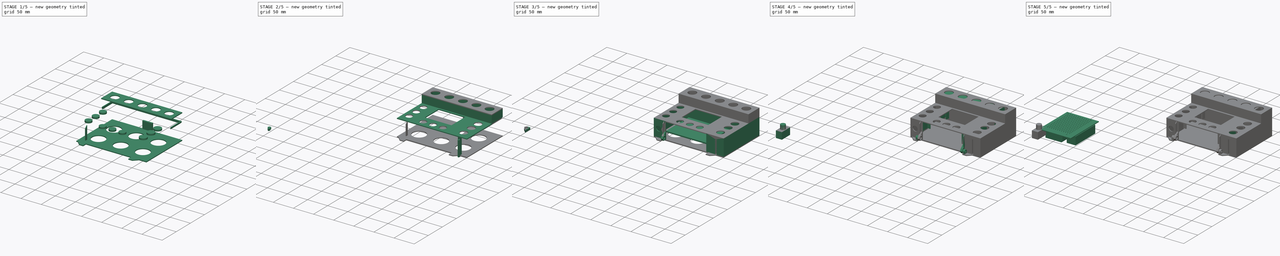
[diagram: build sequence overview — one tinted view per stage of 5, left to right]
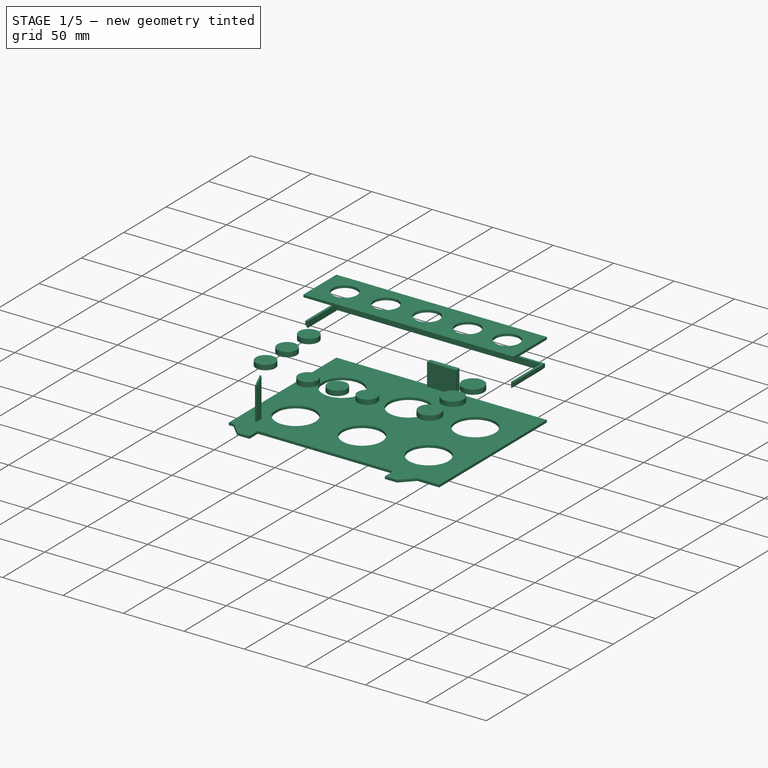
[diagram: stage 1 of 5 — iso view after this stage's code; geometry added in this stage tinted green]
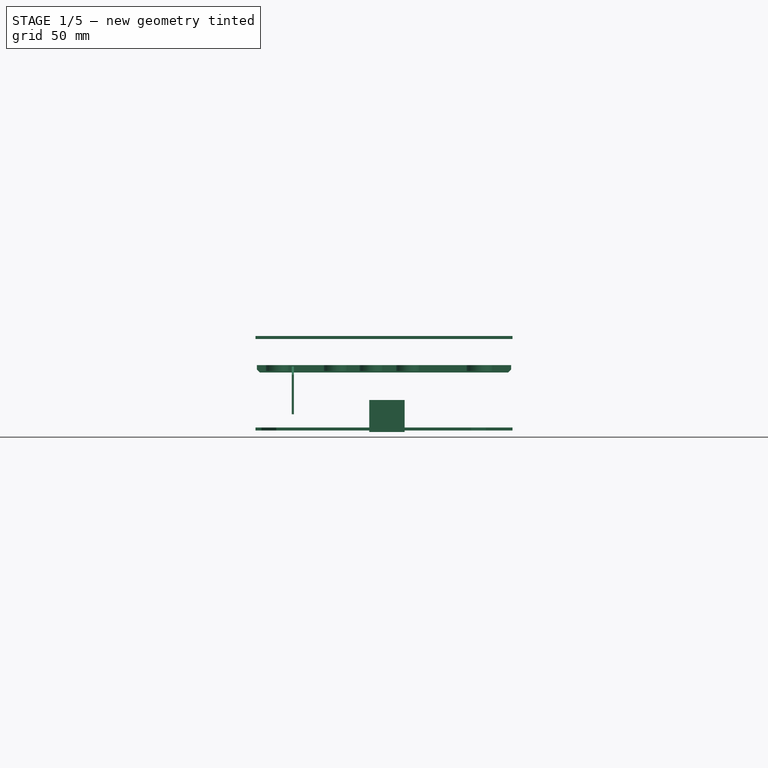
[diagram: stage 1 of 5 — front view after this stage's code; geometry added in this stage tinted green]
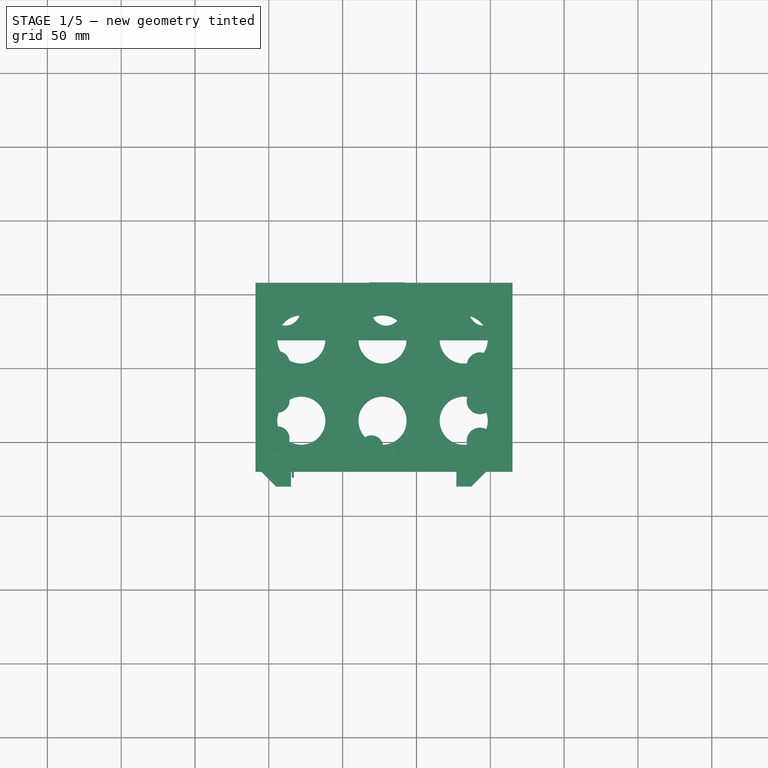
[diagram: stage 1 of 5 — top view after this stage's code; geometry added in this stage tinted green]
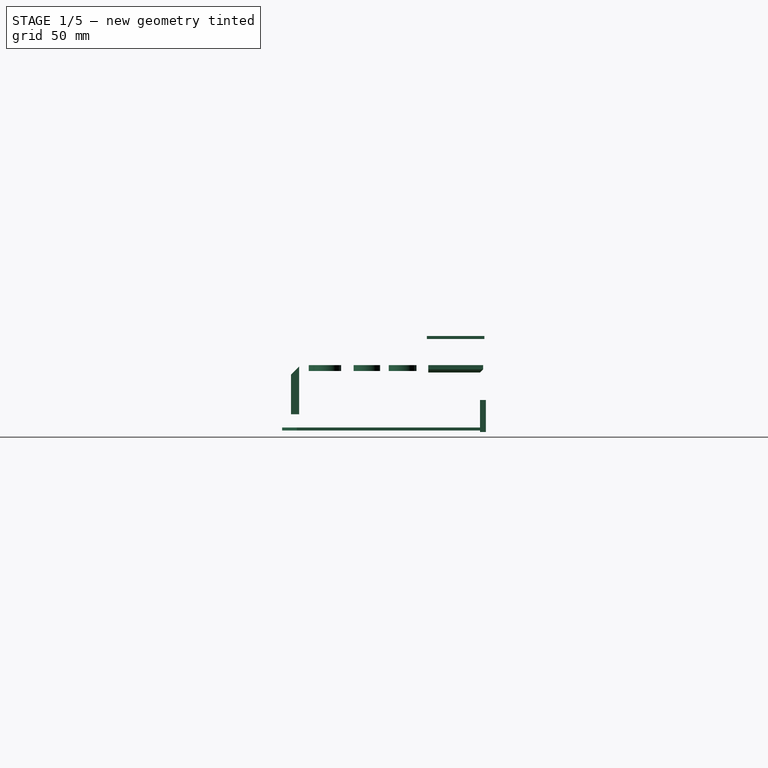
[diagram: stage 1 of 5 — right view after this stage's code; geometry added in this stage tinted green]
FCSTD DOCUMENT  (FreeCAD 0.19R24291 (Git))
Label: enclosure5
License: All rights reserved
LicenseURL: http://en.wikipedia.org/wiki/All_rights_reserved
objects: Sketcher::SketchObject×37, Part::Extrusion×32, PartDesign::FeatureBase×9, PartDesign::Body×9, Part::Compound×8, Part::Cut×6, Part::Sweep×3, Part::FeaturePython×2, Part::Mirroring×2, Part::Box×1, Spreadsheet::Sheet×1
note: 107 computed .brp shape members not serialized (recipe doc carries the construction recipe); baked Part::Feature solids carry a one-line shape summary decoded from their .brp

FEATURE [PartDesign::Body] Body017  label="hinge"
  BaseFeature = -> Extrude127
  Group = -> [Clone017]
  Origin = -> Origin017
  Placement = pos=(0,350,-29) rot=(1,0,0;3.14159rad)
  Tip = -> Clone017
FEATURE [Sketcher::SketchObject] Sketch141
  FullyConstrained = true
  Placement = pos=(0,0,-34) rot=(1,0,0;3.14159rad)
  sketch-geometry (16):
    g0: LineSegment StartX=215 StartY=-170 StartZ=0 EndX=205 EndY=-170 EndZ=0
    g1: LineSegment StartX=205 StartY=-170 StartZ=0 EndX=195 EndY=-180 EndZ=0
    g2: LineSegment StartX=195 StartY=-180 StartZ=0 EndX=191 EndY=-180 EndZ=0
    g3: LineSegment StartX=191 StartY=-180 StartZ=0 EndX=191 EndY=-307 EndZ=0
    g4: LineSegment StartX=365 StartY=-307 StartZ=0 EndX=365 EndY=-180 EndZ=0
    g5: LineSegment StartX=365 StartY=-180 StartZ=0 EndX=347 EndY=-180 EndZ=0
    g6: LineSegment StartX=347 StartY=-180 StartZ=0 EndX=337 EndY=-170 EndZ=0
    g7: LineSegment StartX=337 StartY=-170 StartZ=0 EndX=327 EndY=-170 EndZ=0
    g8: LineSegment StartX=327 StartY=-170 StartZ=0 EndX=327 EndY=-180 EndZ=0
    g9: LineSegment StartX=327 StartY=-180 StartZ=0 EndX=215 EndY=-180 EndZ=0
    g10: LineSegment StartX=215 StartY=-180 StartZ=0 EndX=215 EndY=-170 EndZ=0
    g11: LineSegment StartX=365 StartY=-307 StartZ=0 EndX=292 EndY=-307 EndZ=0
    g12: LineSegment StartX=292 StartY=-307 StartZ=0 EndX=292 EndY=-305.5 EndZ=0
    g13: LineSegment StartX=292 StartY=-305.5 StartZ=0 EndX=268 EndY=-305.5 EndZ=0
    g14: LineSegment StartX=268 StartY=-305.5 StartZ=0 EndX=268 EndY=-307 EndZ=0
    g15: LineSegment StartX=268 StartY=-307 StartZ=0 EndX=191 EndY=-307 EndZ=0
  constraints (48):
    c: Horizontal(g0)
    c: Coincident(g0,g1)
    c: Coincident(g1,g2)
    c: Horizontal(g2)
    c: Coincident(g2,g3)
    c: Vertical(g3)
    c: Vertical(g4)
    c: Coincident(g4,g5)
    c: Horizontal(g5)
    c: Coincident(g5,g6)
    c: Coincident(g6,g7)
    c: Horizontal(g7)
    c: Coincident(g7,g8)
    c: Vertical(g8)
    c: Coincident(g8,g9)
    c: Horizontal(g9)
    c: Coincident(g9,g10)
    c: Coincident(g10,g0)
    c: Vertical(g10)
    c: DistanceX(g0,g0) = 10
    c: DistanceX(g7,g7) = 10
    c: Horizontal(g0,g7)
    c: Horizontal(g1,g9)
    c: Horizontal(g8,g5)
    c: DistanceY(g8,g8) = 10
    c: DistanceY(g8) = -180
    c: DistanceX(g4) = 365
    c: DistanceX(g2) = 191
    c: DistanceY(g3) = -307
    c: DistanceX(g7) = 327
    c: DistanceX(g0) = 215
    c: Angle(g0,g1,g0) = 0.785398
    c: Angle(g6,g7,g6) = 0.785398
    c: Coincident(g4,g11)
    c: Horizontal(g11)
    c: Coincident(g11,g12)
    c: Coincident(g12,g13)
    c: Horizontal(g13)
    c: Coincident(g13,g14)
    c: Vertical(g14)
    c: Coincident(g14,g15)
    c: Coincident(g15,g3)
    c: Horizontal(g15)
    c: Horizontal(g11,g14)
    c: Vertical(g12)
    c: DistanceY(g14,g14) = 1.5
    c: DistanceX(g13,g13) = 24
    c: DistanceX(g11,g11) = 73
FEATURE [Part::Extrusion] Extrude129  label="lid001"
  Base = -> Sketch141
  Dir = (0,0,-1)
  DirMode = 2
  FaceMakerClass = Part::FaceMakerBullseye
  LengthFwd = 2
  LengthRev = 0
  Solid = true
  Symmetric = false
FEATURE [PartDesign::FeatureBase] Clone018
  BaseFeature = -> Sketch152
  Placement = pos=(0,0,26) rot=(1,0,0;3.14159rad)
FEATURE [PartDesign::Body] Body018
  Group = -> [Clone018]
  Origin = -> Origin018
  Tip = -> Clone018
FEATURE [Part::Extrusion] Extrude
  Base = -> Body018
  Dir = (0,-2e-16,-1)
  DirMode = 2
  FaceMakerClass = Part::FaceMakerBullseye
  LengthFwd = 0
  LengthRev = 2
  Solid = true
  Symmetric = false
FEATURE [Sketcher::SketchObject] Sketch157
  FullyConstrained = true
  Placement = pos=(0,304,0) rot=(0,0.707107,0.707107;3.14159rad)
  sketch-geometry (4):
    g0: LineSegment StartX=-292 StartY=-37 StartZ=0 EndX=-268 EndY=-37 EndZ=0
    g1: LineSegment StartX=-268 StartY=-37 StartZ=0 EndX=-268 EndY=-15.32 EndZ=0
    g2: LineSegment StartX=-268 StartY=-15.32 StartZ=0 EndX=-292 EndY=-15.32 EndZ=0
    g3: LineSegment StartX=-292 StartY=-15.32 StartZ=0 EndX=-292 EndY=-37 EndZ=0
  constraints (12):
    c: Coincident(g0,g1)
    c: Coincident(g1,g2)
    c: Coincident(g2,g3)
    c: Coincident(g3,g0)
    c: Horizontal(g0)
    c: Horizontal(g2)
    c: Vertical(g1)
    c: Vertical(g3)
    c: DistanceX(g0) = -292
    c: DistanceY(g0) = -37
    c: DistanceY(g3,g3) = 21.68
    c: DistanceX(g0,g0) = 24
FEATURE [Part::Extrusion] Extrude143
  Base = -> Sketch157
  Dir = (1e-16,1,0)
  DirMode = 2
  FaceMakerClass = Part::FaceMakerBullseye
  LengthFwd = 4
  LengthRev = 0
  Solid = true
  Symmetric = false
FEATURE [Sketcher::SketchObject] Sketch162
  FullyConstrained = false
  Placement = pos=(0,0,-37) rot=(-1,0,0;3.14159rad)
  sketch-geometry (1):
    g0: Circle CenterX=222 CenterY=-214.651 CenterZ=0 NormalX=0 NormalY=0 NormalZ=1 AngleXU=0 Radius=16.2788
FEATURE [Part::Extrusion] Extrude144
  Base = -> Sketch162
  Dir = (0,1e-16,-1)
  DirMode = 2
  FaceMakerClass = Part::FaceMakerBullseye
  LengthFwd = 0
  LengthRev = 4
  Solid = true
  Symmetric = false
FEATURE [Part::FeaturePython] Array  # Draft array (typed FeaturePython)
  Angle = 360
  ArrayType = 0
  Axis = (0,0,1)
  Base = -> Extrude144
  Center = (0,0,0)
  Count = 6
  ExpandArray = false
  Fuse = false
  IntervalAxis = (0,0,0)
  IntervalX = (55,0,0)
  IntervalY = (0,55,0)
  IntervalZ = (0,0,100)
  NumberCircles = 3
  NumberPolar = 5
  NumberX = 3
  NumberY = 2
  NumberZ = 1
  PlacementList = 6 placements: [(0,0,0),(0,55,0),(55,0,0),(55,55,0),(110,0,0),(110,55,0)]
  RadialDistance = 50
  ScaleList = (6) [(1,1,1),(1,1,1),(1,1,1),(1,1,1),(1,1,1),(1,1,1)]
  Symmetry = 1
  TangentialDistance = 25
FEATURE [Part::Cut] Cut009
  Base = -> Extrude129
  Tool = -> Array
FEATURE [Sketcher::SketchObject] Sketch163
  FullyConstrained = false
  Placement = pos=(0,0,4.32) rot=(1,0,0;3.14159rad)
  sketch-geometry (9):
    g0: Circle CenterX=206 CenterY=-202 CenterZ=0 NormalX=0 NormalY=0 NormalZ=1 AngleXU=0 Radius=8
    g1: Circle CenterX=206 CenterY=-227.431 CenterZ=0 NormalX=0 NormalY=0 NormalZ=1 AngleXU=0 Radius=8
    g2: Circle CenterX=206 CenterY=-253 CenterZ=0 NormalX=0 NormalY=0 NormalZ=1 AngleXU=0 Radius=8
    g3: Circle CenterX=343 CenterY=-200.227 CenterZ=0 NormalX=0 NormalY=0 NormalZ=1 AngleXU=0 Radius=9
    g4: Circle CenterX=343 CenterY=-227.385 CenterZ=0 NormalX=0 NormalY=0 NormalZ=1 AngleXU=0 Radius=9
    g5: Circle CenterX=343 CenterY=-251.212 CenterZ=0 NormalX=0 NormalY=0 NormalZ=1 AngleXU=0 Radius=9
    g6: Circle CenterX=245.29 CenterY=-196 CenterZ=0 NormalX=0 NormalY=0 NormalZ=1 AngleXU=0 Radius=8
    g7: Circle CenterX=269.509 CenterY=-196 CenterZ=0 NormalX=0 NormalY=0 NormalZ=1 AngleXU=0 Radius=8
    g8: Circle CenterX=294.293 CenterY=-196 CenterZ=0 NormalX=0 NormalY=0 NormalZ=1 AngleXU=0 Radius=8
  constraints (18):
    c: Vertical(g0,g1)
    c: Vertical(g1,g2)
    c: Vertical(g3,g4)
    c: Vertical(g4,g5)
    c: Horizontal(g6,g7)
    c: Horizontal(g7,g8)
    c: Radius(g2) = 8
    c: Radius(g1) = 8
    c: Radius(g0) = 8
    c: Radius(g4) = 9
    c: Radius(g5) = 9
    c: Radius(g3) = 9
    c: Radius(g8) = 8
    c: Radius(g7) = 8
    c: Radius(g6) = 8
    c: DistanceX(g3) = 343
    c: DistanceX(g0) = 206
    c: DistanceY(g6) = -196
FEATURE [Part::Extrusion] Extrude145
  Base = -> Sketch163
  Dir = (0,0,-1)
  DirMode = 2
  FaceMakerClass = Part::FaceMakerBullseye
  LengthFwd = 0
  LengthRev = 4
  Solid = true
  Symmetric = false
FEATURE [Sketcher::SketchObject] Sketch164
  FullyConstrained = true
  Placement = pos=(215.5,0,0) rot=(0.57735,0.57735,0.57735;2.0944rad)
  sketch-geometry (4):
    g0: LineSegment StartX=181.5 StartY=7.32 StartZ=0 EndX=176 EndY=1.82 EndZ=0
    g1: LineSegment StartX=176 StartY=1.82 StartZ=0 EndX=176 EndY=-25 EndZ=0
    g2: LineSegment StartX=176 StartY=-25 StartZ=0 EndX=181.5 EndY=-25 EndZ=0
    g3: LineSegment StartX=181.5 StartY=-25 StartZ=0 EndX=181.5 EndY=7.32 EndZ=0
  constraints (12):
    c: Coincident(g0,g1)
    c: Vertical(g1)
    c: Coincident(g1,g2)
    c: Horizontal(g2)
    c: Coincident(g2,g3)
    c: Coincident(g3,g0)
    c: Vertical(g3)
    c: DistanceY(g3,g3) = 32.32
    c: DistanceY(g0) = 7.32
    c: DistanceX(g0) = 181.5
    c: DistanceX(g2,g2) = 5.5
    c: Angle(g3,g0,g0) = 2.35619
FEATURE [Part::Extrusion] Extrude146
  Base = -> Sketch164
  Dir = (1,-2e-16,2e-16)
  DirMode = 2
  FaceMakerClass = Part::FaceMakerBullseye
  LengthFwd = 1.5
  LengthRev = 0
  Solid = true
  Symmetric = false
FEATURE [PartDesign::FeatureBase] Clone020
  BaseFeature = -> Extrude146
FEATURE [PartDesign::Body] Body020
  Group = -> [Clone020]
  Origin = -> Origin020
  Placement = pos=(109.5,0,0) rot=(0,0,1;0rad)
  Tip = -> Clone020
FEATURE [Sketcher::SketchObject] Sketch165  label="profile002"
  FullyConstrained = true
  Placement = pos=(230,0,0) rot=(0.57735,0.57735,0.57735;2.0944rad)
  sketch-geometry (4):
    g0: LineSegment StartX=306.1 StartY=5.32 StartZ=0 EndX=304.1 EndY=3.32 EndZ=0
    g1: LineSegment StartX=304.1 StartY=3.32 StartZ=0 EndX=304.1 EndY=8.32 EndZ=0
    g2: LineSegment StartX=304.1 StartY=8.32 StartZ=0 EndX=306.1 EndY=8.32 EndZ=0
    g3: LineSegment StartX=306.1 StartY=8.32 StartZ=0 EndX=306.1 EndY=5.32 EndZ=0
  constraints (12):
    c: Coincident(g0,g1)
    c: Coincident(g1,g2)
    c: Horizontal(g2)
    c: Coincident(g2,g3)
    c: Coincident(g3,g0)
    c: Vertical(g3)
    c: Vertical(g1)
    c: DistanceX(g2,g2) = 2
    c: DistanceY(g0) = 5.32
    c: DistanceY(g0,g0) = 2
    c: DistanceY(g3,g3) = 3
    c: DistanceX(g2) = 306.1
FEATURE [Sketcher::SketchObject] Sketch166  label="path002"
  FullyConstrained = true
  Placement = pos=(0,0,6) rot=(0,0,1;0rad)
  sketch-geometry (3):
    g0: LineSegment StartX=192 StartY=269 StartZ=0 EndX=192 EndY=306 EndZ=0
    g1: LineSegment StartX=192 StartY=306 StartZ=0 EndX=364 EndY=306 EndZ=0
    g2: LineSegment StartX=364 StartY=306 StartZ=0 EndX=364 EndY=269 EndZ=0
  constraints (10):
    c: Vertical(g0)
    c: Coincident(g0,g1)
    c: Horizontal(g1)
    c: Coincident(g1,g2)
    c: Vertical(g2)
    c: DistanceX(g0) = 192
    c: DistanceY(g0) = 269
    c: DistanceY(g0,g0) = 37
    c: DistanceX(g1,g1) = 172
    c: Horizontal(g2,g0)
FEATURE [Part::Sweep] Sweep002  label="clamshell002"
  Frenet = false
  Sections = -> [Sketch165]
  Solid = true
  Spine = -> Sketch166
  Transition = 1
FEATURE [Sketcher::SketchObject] Sketch167
  FullyConstrained = false
  Placement = pos=(0,0,29) rot=(0,0,1;0rad)
  sketch-geometry (5):
    g0: Circle CenterX=211.273 CenterY=288 CenterZ=0 NormalX=0 NormalY=0 NormalZ=1 AngleXU=0 Radius=10
    g1: Circle CenterX=245.454 CenterY=288 CenterZ=0 NormalX=0 NormalY=0 NormalZ=1 AngleXU=0 Radius=10
    g2: Circle CenterX=279.504 CenterY=288 CenterZ=0 NormalX=0 NormalY=0 NormalZ=1 AngleXU=0 Radius=10
    g3: Circle CenterX=345.673 CenterY=288 CenterZ=0 NormalX=0 NormalY=0 NormalZ=1 AngleXU=0 Radius=10
    g4: Circle CenterX=313 CenterY=288 CenterZ=0 NormalX=0 NormalY=0 NormalZ=1 AngleXU=0 Radius=10
  constraints (10):
    c: Radius(g0) = 10
    c: Equal(g0,g1) = 10
    c: Equal(g0,g2) = 10
    c: Equal(g0,g3) = 10
    c: Equal(g0,g4) = 10
    c: Horizontal(g0,g1)
    c: Horizontal(g1,g2)
    c: Horizontal(g2,g4)
    c: Horizontal(g4,g3)
    c: DistanceY(g0) = 288
FEATURE [Part::Extrusion] Extrude147
  Base = -> Sketch167
  Dir = (0,0,1)
  DirMode = 2
  FaceMakerClass = Part::FaceMakerBullseye
  LengthFwd = 0
  LengthRev = 4
  Solid = true
  Symmetric = false
FEATURE [Part::Cut] Cut010
  Base = -> Extrude
  Tool = -> Extrude147
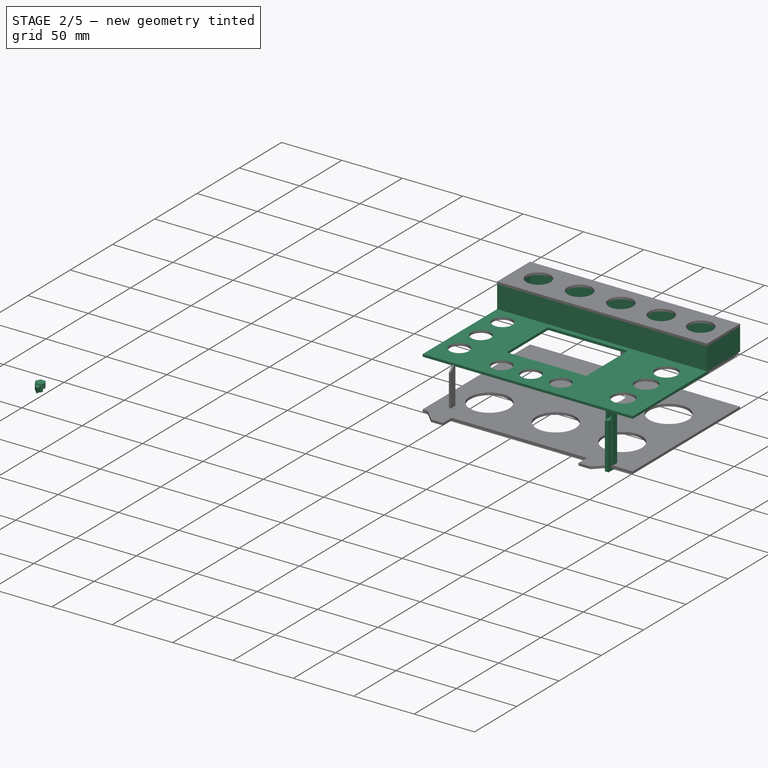
[diagram: stage 2 of 5 — iso view after this stage's code; geometry added in this stage tinted green]
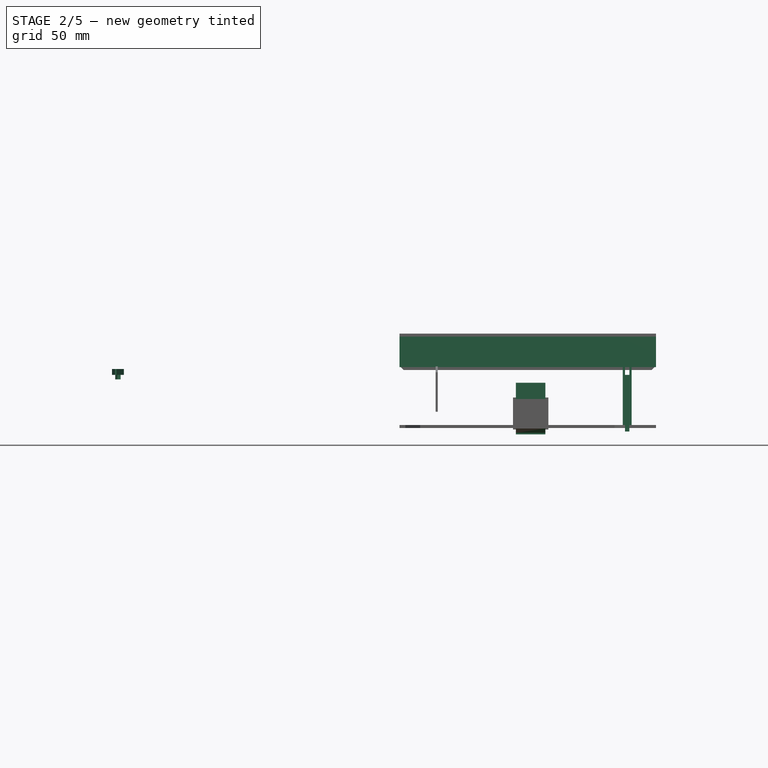
[diagram: stage 2 of 5 — front view after this stage's code; geometry added in this stage tinted green]
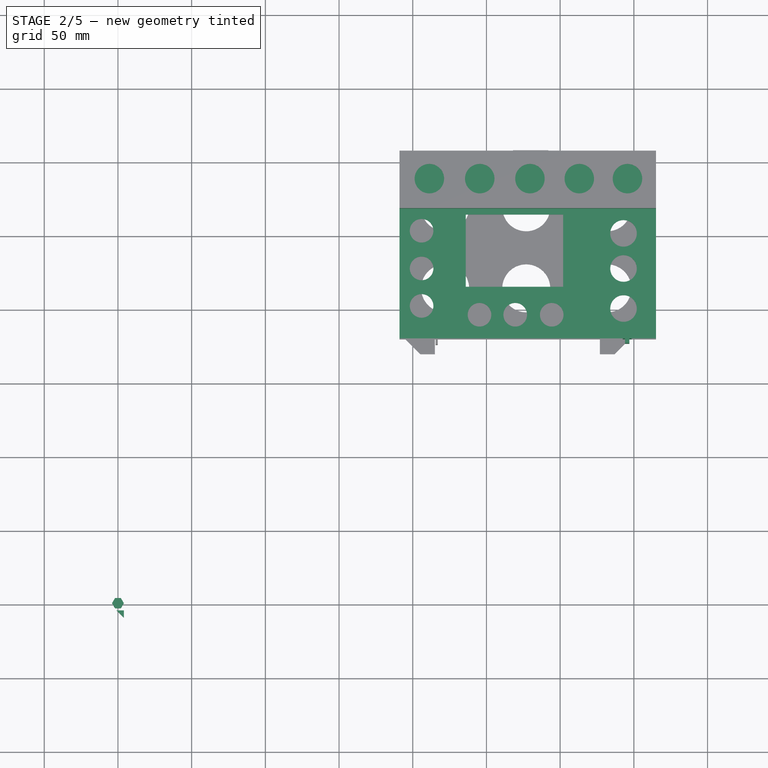
[diagram: stage 2 of 5 — top view after this stage's code; geometry added in this stage tinted green]
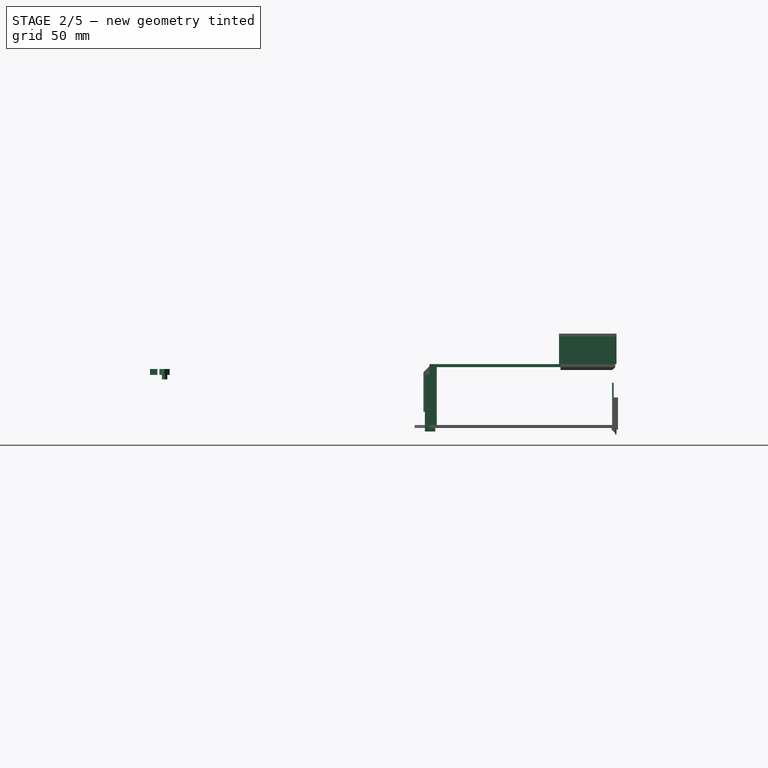
[diagram: stage 2 of 5 — right view after this stage's code; geometry added in this stage tinted green]
FEATURE [Sketcher::SketchObject] Sketch034
  FullyConstrained = true
  Placement = pos=(0,0,4.32) rot=(1,0,0;3.14159rad)
  sketch-geometry (4):
    g0: LineSegment StartX=236 StartY=-215 StartZ=0 EndX=302 EndY=-215 EndZ=0
    g1: LineSegment StartX=302 StartY=-215 StartZ=0 EndX=302 EndY=-264 EndZ=0
    g2: LineSegment StartX=302 StartY=-264 StartZ=0 EndX=236 EndY=-264 EndZ=0
    g3: LineSegment StartX=236 StartY=-264 StartZ=0 EndX=236 EndY=-215 EndZ=0
  constraints (12):
    c: Coincident(g0,g1)
    c: Coincident(g1,g2)
    c: Coincident(g2,g3)
    c: Coincident(g3,g0)
    c: Horizontal(g0)
    c: Horizontal(g2)
    c: Vertical(g1)
    c: Vertical(g3)
    c: DistanceX(g0) = 236
    c: DistanceY(g0) = -215
    c: DistanceX(g0,g0) = 66
    c: DistanceY(g3,g3) = 49
FEATURE [Part::Extrusion] Extrude028  label="jetson heatsink"
  Base = -> Sketch034
  Dir = (0,0,-1)
  DirMode = 2
  FaceMakerClass = Part::FaceMakerBullseye
  LengthFwd = 0
  LengthRev = 4
  Solid = true
  Symmetric = false
FEATURE [Sketcher::SketchObject] Sketch144
  FullyConstrained = true
  expr: Constraints[17] = Spreadsheet.r
  sketch-geometry (10):
    g0: LineSegment StartX=4 StartY=0.36 StartZ=0 EndX=2 EndY=3.8241 EndZ=0
    g1: LineSegment StartX=2 StartY=3.8241 StartZ=0 EndX=-2 EndY=3.8241 EndZ=0
    g2: LineSegment StartX=-2 StartY=3.8241 StartZ=0 EndX=-4 EndY=0.36 EndZ=0
    g3: LineSegment StartX=-4 StartY=0.36 StartZ=0 EndX=-2 EndY=-3.1041 EndZ=0
    g4: LineSegment StartX=-2 StartY=-3.1041 StartZ=0 EndX=2 EndY=-3.1041 EndZ=0
    g5: LineSegment StartX=2 StartY=-3.1041 StartZ=0 EndX=4 EndY=0.36 EndZ=0
    g6: Circle CenterX=0 CenterY=0.36 CenterZ=0 NormalX=0 NormalY=0 NormalZ=1 AngleXU=0 Radius=4
    g7: LineSegment StartX=4 StartY=-9.5 StartZ=0 EndX=4 EndY=-4.5 EndZ=0
    g8: LineSegment StartX=4 StartY=-4.5 StartZ=0 EndX=-1 EndY=-4.5 EndZ=0
    g9: LineSegment StartX=-1 StartY=-4.5 StartZ=0 EndX=4 EndY=-9.5 EndZ=0
  constraints (26):
    c: Coincident(g0,g1)
    c: Coincident(g1,g2)
    c: Coincident(g2,g3)
    c: Coincident(g3,g4)
    c: Coincident(g4,g5)
    c: Coincident(g5,g0)
    c: Equal(g0, g1-g5) x5
    c: PointOnObject(g0,g6)
    c: PointOnObject(g1,g6)
    c: PointOnObject(g2,g6)
    c: PointOnObject(g3,g6)
    c: PointOnObject(g4,g6)
    c: PointOnObject(g5,g6)
    c: Radius(g6) = 4
    c: DistanceY(g6) = 0.36
    c: PointOnObject(g6,g-2)
    c: Horizontal(g1)
    c: Vertical(g7)
    c: Coincident(g7,g8)
    c: Horizontal(g8)
    c: Coincident(g8,g9)
    c: Coincident(g9,g7)
    c: Angle(g9,g7,g7) = 2.35619
    c: DistanceY(g7) = -4.5
    c: DistanceX(g7) = 4
    c: DistanceX(g8) = -1
FEATURE [Sketcher::SketchObject] Sketch145
  FullyConstrained = true
  expr: Constraints[0] = Spreadsheet.r2
  sketch-geometry (1):
    g0: Circle CenterX=0 CenterY=0.36 CenterZ=0 NormalX=0 NormalY=0 NormalZ=1 AngleXU=0 Radius=1.8
  constraints (3):
    c: Radius(g0) = 1.8
    c: PointOnObject(g0,g-2)
    c: DistanceY(g0) = 0.36
FEATURE [Part::Extrusion] Extrude132
  Base = -> Sketch144
  Dir = (0,0,1)
  DirMode = 2
  FaceMakerClass = Part::FaceMakerBullseye
  LengthFwd = 4
  LengthRev = 0
  Solid = true
  Symmetric = false
FEATURE [Part::Extrusion] Extrude133
  Base = -> Sketch145
  Dir = (0,0,1)
  DirMode = 2
  FaceMakerClass = Part::FaceMakerBullseye
  LengthFwd = 0
  LengthRev = 3
  Solid = true
  Symmetric = false
FEATURE [Sketcher::SketchObject] Sketch146
  FullyConstrained = true
  Placement = pos=(0,0,5.32) rot=(0,0,1;0rad)
  sketch-geometry (8):
    g0: LineSegment StartX=344 StartY=180 StartZ=0 EndX=342.5 EndY=180 EndZ=0
    g1: LineSegment StartX=342.5 StartY=180 StartZ=0 EndX=342.5 EndY=185 EndZ=0
    g2: LineSegment StartX=342.5 StartY=185 StartZ=0 EndX=344 EndY=185 EndZ=0
    g3: LineSegment StartX=344 StartY=185 StartZ=0 EndX=344 EndY=180 EndZ=0
    g4: LineSegment StartX=347 StartY=180 StartZ=0 EndX=348.5 EndY=180 EndZ=0
    g5: LineSegment StartX=348.5 StartY=180 StartZ=0 EndX=348.5 EndY=185 EndZ=0
    g6: LineSegment StartX=348.5 StartY=185 StartZ=0 EndX=347 EndY=185 EndZ=0
    g7: LineSegment StartX=347 StartY=185 StartZ=0 EndX=347 EndY=180 EndZ=0
  constraints (24):
    c: Coincident(g0,g1)
    c: Coincident(g1,g2)
    c: Coincident(g2,g3)
    c: Coincident(g3,g0)
    c: Horizontal(g0)
    c: Horizontal(g2)
    c: Vertical(g1)
    c: Vertical(g3)
    c: Coincident(g4,g5)
    c: Coincident(g5,g6)
    c: Coincident(g6,g7)
    c: Coincident(g7,g4)
    c: Horizontal(g4)
    c: Horizontal(g6)
    c: Vertical(g5)
    c: Vertical(g7)
    c: Horizontal(g2,g6)
    c: Horizontal(g4,g0)
    c: DistanceX(g4,g4) = 1.5
    c: DistanceX(g0,g0) = 1.5
    c: DistanceX(g0,g4) = 3
    c: DistanceX(g0) = 344
    c: DistanceY(g1,g1) = 5
    c: DistanceY(g0) = 180
FEATURE [Part::Extrusion] Extrude134
  Base = -> Sketch146
  Dir = (0,0,1)
  DirMode = 2
  FaceMakerClass = Part::FaceMakerBullseye
  LengthFwd = 0
  LengthRev = 39.32
  Solid = true
  Symmetric = false
FEATURE [Sketcher::SketchObject] Sketch147
  FullyConstrained = false
  Placement = pos=(0,177,-3) rot=(1,0,0;1.5708rad)
  sketch-geometry (4):
    g0: LineSegment StartX=344 StartY=-35.3972 StartZ=0 EndX=347 EndY=-35.3972 EndZ=0
    g1: LineSegment StartX=347 StartY=-35.3972 StartZ=0 EndX=347 EndY=3 EndZ=0
    g2: LineSegment StartX=347 StartY=3 StartZ=0 EndX=344 EndY=3 EndZ=0
    g3: LineSegment StartX=344 StartY=3 StartZ=0 EndX=344 EndY=-35.3972 EndZ=0
  constraints (11):
    c: Coincident(g0,g1)
    c: Coincident(g1,g2)
    c: Coincident(g2,g3)
    c: Coincident(g3,g0)
    c: Horizontal(g0)
    c: Horizontal(g2)
    c: Vertical(g1)
    c: Vertical(g3)
    c: DistanceX(g2,g2) = 3
    c: DistanceY(g2) = 3
    c: DistanceX(g2) = 344
FEATURE [Part::Extrusion] Extrude135
  Base = -> Sketch147
  Dir = (0,-1,2e-16)
  DirMode = 2
  FaceMakerClass = Part::FaceMakerBullseye
  LengthFwd = 0
  LengthRev = 7
  Solid = true
  Symmetric = false
FEATURE [Sketcher::SketchObject] Sketch148
  FullyConstrained = true
  Placement = pos=(0,0,5.32) rot=(1,0,0;3.14159rad)
  sketch-geometry (4):
    g0: LineSegment StartX=191 StartY=-180 StartZ=0 EndX=365 EndY=-180 EndZ=0
    g1: LineSegment StartX=365 StartY=-180 StartZ=0 EndX=365 EndY=-270 EndZ=0
    g2: LineSegment StartX=365 StartY=-270 StartZ=0 EndX=191 EndY=-270 EndZ=0
    g3: LineSegment StartX=191 StartY=-270 StartZ=0 EndX=191 EndY=-180 EndZ=0
  constraints (12):
    c: Coincident(g0,g1)
    c: Coincident(g1,g2)
    c: Coincident(g2,g3)
    c: Coincident(g3,g0)
    c: Horizontal(g0)
    c: Horizontal(g2)
    c: Vertical(g1)
    c: Vertical(g3)
    c: DistanceX(g0) = 191
    c: DistanceY(g0) = -180
    c: DistanceX(g0,g0) = 174
    c: DistanceY(g3,g3) = 90
FEATURE [Part::Extrusion] Extrude136  label="floor"
  Base = -> Sketch148
  Dir = (0,1e-16,-1)
  DirMode = 2
  FaceMakerClass = Part::FaceMakerBullseye
  LengthFwd = 0
  LengthRev = 2
  Solid = true
  Symmetric = false
FEATURE [Sketcher::SketchObject] Sketch151  label="profile001"
  FullyConstrained = true
  Placement = pos=(194,0,0) rot=(0.57735,-0.57735,-0.57735;2.0944rad)
  sketch-geometry (8):
    g0: LineSegment StartX=-307 StartY=26 StartZ=0 EndX=-305 EndY=26 EndZ=0
    g1: LineSegment StartX=-305 StartY=26 StartZ=0 EndX=-305 EndY=8.32 EndZ=0
    g2: LineSegment StartX=-307 StartY=7.32 StartZ=0 EndX=-307 EndY=26 EndZ=0
    g3: LineSegment StartX=-304.5 StartY=5.32 StartZ=0 EndX=-305.4 EndY=5.32 EndZ=0
    g4: LineSegment StartX=-305.4 StartY=5.32 StartZ=0 EndX=-305.4 EndY=7.32 EndZ=0
    g5: LineSegment StartX=-305.4 StartY=7.32 StartZ=0 EndX=-307 EndY=7.32 EndZ=0
    g6: LineSegment StartX=-304.5 StartY=5.32 StartZ=0 EndX=-304.5 EndY=7.32 EndZ=0
    g7: LineSegment StartX=-304.5 StartY=7.32 StartZ=0 EndX=-305 EndY=8.32 EndZ=0
  constraints (24):
    c: Coincident(g0,g1)
    c: Coincident(g2,g0)
    c: Horizontal(g0)
    c: Vertical(g1)
    c: Vertical(g2)
    c: DistanceX(g0,g0) = 2
    c: DistanceY(g0) = 26
    c: DistanceX(g1) = -305
    c: DistanceY(g2,g2) = 18.68
    c: Horizontal(g3)
    c: Coincident(g3,g4)
    c: Vertical(g4)
    c: Coincident(g4,g5)
    c: Coincident(g5,g2)
    c: Horizontal(g5)
    c: DistanceY(g4,g4) = 2
    c: Coincident(g3,g6)
    c: Vertical(g6)
    c: Coincident(g6,g7)
    c: Coincident(g7,g1)
    c: DistanceX(g5,g5) = 1.6
    c: DistanceX(g3,g3) = 0.9
    c: Horizontal(g6,g4)
    c: DistanceY(g6,g1) = 1
FEATURE [Sketcher::SketchObject] Sketch152  label="path001"
  FullyConstrained = true
  Placement = pos=(0,0,7.32) rot=(1,0,0;3.14159rad)
  sketch-geometry (4):
    g0: LineSegment StartX=191 StartY=-268 StartZ=0 EndX=191 EndY=-307 EndZ=0
    g1: LineSegment StartX=191 StartY=-307 StartZ=0 EndX=365 EndY=-307 EndZ=0
    g2: LineSegment StartX=365 StartY=-307 StartZ=0 EndX=365 EndY=-268 EndZ=0
    g3: LineSegment StartX=191 StartY=-268 StartZ=0 EndX=365 EndY=-268 EndZ=0
  constraints (12):
    c: Vertical(g0)
    c: Coincident(g0,g1)
    c: Horizontal(g1)
    c: Coincident(g1,g2)
    c: Vertical(g2)
    c: DistanceX(g0) = 191
    c: DistanceY(g0) = -307
    c: DistanceX(g1,g1) = 174
    c: Coincident(g3,g0)
    c: Coincident(g3,g2)
    c: Horizontal(g3)
    c: DistanceY(g0,g0) = 39
FEATURE [Part::Sweep] Sweep001
  Frenet = false
  Sections = -> [Sketch151]
  Solid = true
  Spine = -> Sketch152
  Transition = 1
FEATURE [Sketcher::SketchObject] Sketch153
  FullyConstrained = true
  Placement = pos=(0,0,4.32) rot=(1,0,0;3.14159rad)
  sketch-geometry (4):
    g0: LineSegment StartX=190 StartY=-271.5 StartZ=0 EndX=366 EndY=-271.5 EndZ=0
    g1: LineSegment StartX=366 StartY=-271.5 StartZ=0 EndX=366 EndY=-269 EndZ=0
    g2: LineSegment StartX=366 StartY=-269 StartZ=0 EndX=190 EndY=-269 EndZ=0
    g3: LineSegment StartX=190 StartY=-269 StartZ=0 EndX=190 EndY=-271.5 EndZ=0
  constraints (12):
    c: Coincident(g0,g1)
    c: Coincident(g1,g2)
    c: Coincident(g2,g3)
    c: Coincident(g3,g0)
    c: Horizontal(g0)
    c: Horizontal(g2)
    c: Vertical(g1)
    c: Vertical(g3)
    c: DistanceY(g2) = -269
    c: DistanceX(g2) = 190
    c: DistanceY(g3,g3) = 2.5
    c: DistanceX(g2,g2) = 176
FEATURE [Part::Extrusion] Extrude139  label="clamshell"
  Base = -> Sketch153
  Dir = (0,-1e-16,-1)
  DirMode = 2
  FaceMakerClass = Part::FaceMakerBullseye
  LengthFwd = 0
  LengthRev = 4
  Solid = true
  Symmetric = false
FEATURE [Sketcher::SketchObject] Sketch155
  FullyConstrained = true
  Placement = pos=(0,0,5.32) rot=(0,0,1;0rad)
  sketch-geometry (4):
    g0: LineSegment StartX=192 StartY=269 StartZ=0 EndX=364 EndY=269 EndZ=0
    g1: LineSegment StartX=364 StartY=269 StartZ=0 EndX=364 EndY=306 EndZ=0
    g2: LineSegment StartX=364 StartY=306 StartZ=0 EndX=192 EndY=306 EndZ=0
    g3: LineSegment StartX=192 StartY=306 StartZ=0 EndX=192 EndY=269 EndZ=0
  constraints (12):
    c: Coincident(g0,g1)
    c: Coincident(g1,g2)
    c: Coincident(g2,g3)
    c: Coincident(g3,g0)
    c: Horizontal(g0)
    c: Horizontal(g2)
    c: Vertical(g1)
    c: Vertical(g3)
    c: DistanceX(g2) = 192
    c: DistanceY(g2) = 306
    c: DistanceX(g0) = 364
    c: DistanceY(g0) = 269
FEATURE [Part::Extrusion] Extrude141  label="clamshell001"
  Base = -> Sketch155
  Dir = (0,0,1)
  DirMode = 2
  FaceMakerClass = Part::FaceMakerBullseye
  LengthFwd = 3
  LengthRev = 0
  Solid = true
  Symmetric = false
FEATURE [Sketcher::SketchObject] Sketch156
  FullyConstrained = true
  Placement = pos=(270,0,0) rot=(0.57735,0.57735,0.57735;2.0944rad)
  sketch-geometry (11):
    g0: LineSegment StartX=306 StartY=-36.32 StartZ=0 EndX=303 EndY=-36.32 EndZ=0
    g1: LineSegment StartX=303 StartY=-36.32 StartZ=0 EndX=306 EndY=-39.32 EndZ=0
    g2: LineSegment StartX=306 StartY=-39.32 StartZ=0 EndX=306 EndY=-40.32 EndZ=0
    g3: LineSegment StartX=306 StartY=-40.32 StartZ=0 EndX=307 EndY=-40.32 EndZ=0
    g4: LineSegment StartX=307 StartY=-40.32 StartZ=0 EndX=307 EndY=-15.32 EndZ=0
    g5: LineSegment StartX=307 StartY=-15.32 StartZ=0 EndX=305 EndY=-15.32 EndZ=0
    g6: LineSegment StartX=305 StartY=-15.32 StartZ=0 EndX=305 EndY=-5.32 EndZ=0
    g7: LineSegment StartX=305 StartY=-5.32 StartZ=0 EndX=304 EndY=-5.32 EndZ=0
    g8: LineSegment StartX=304 StartY=-5.32 StartZ=0 EndX=304 EndY=-16.32 EndZ=0
    g9: LineSegment StartX=304 StartY=-16.32 StartZ=0 EndX=306 EndY=-16.32 EndZ=0
    g10: LineSegment StartX=306 StartY=-16.32 StartZ=0 EndX=306 EndY=-36.32 EndZ=0
  constraints (33):
    c: Horizontal(g0)
    c: Coincident(g0,g1)
    c: Coincident(g1,g2)
    c: Vertical(g2)
    c: Coincident(g2,g3)
    c: Horizontal(g3)
    c: Coincident(g3,g4)
    c: Vertical(g4)
    c: Coincident(g4,g5)
    c: Horizontal(g5)
    c: Coincident(g5,g6)
    c: Vertical(g6)
    c: Coincident(g6,g7)
    c: Horizontal(g7)
    c: Coincident(g7,g8)
    c: Vertical(g8)
    c: Coincident(g8,g9)
    c: Horizontal(g9)
    c: Coincident(g9,g10)
    c: Vertical(g10)
    c: Coincident(g0,g10)
    c: DistanceY(g10,g10) = 20
    c: DistanceY(g9,g4) = 1
    c: DistanceX(g9,g4) = 1
    c: DistanceX(g8,g5) = 1
    c: Vertical(g1,g0)
    c: DistanceX(g0,g0) = 3
    c: DistanceY(g2,g2) = 1
    c: DistanceY(g1,g0) = 3
    c: DistanceY(g6,g6) = 10
    c: DistanceX(g5,g5) = 2
    c: DistanceY(g0) = -36.32
    c: DistanceX(g6) = 305
FEATURE [Part::Extrusion] Extrude142  label="clip002"
  Base = -> Sketch156
  Dir = (1,-2e-16,2e-16)
  DirMode = 2
  FaceMakerClass = Part::FaceMakerBullseye
  LengthFwd = 20
  LengthRev = 0
  Solid = true
  Symmetric = false
FEATURE [Part::Compound] Compound007  label="bottom holes"
  Links = -> [Extrude028,Extrude139,Extrude145]
FEATURE [Part::Cut] Cut008  label="floor001"
  Base = -> Extrude136
  Tool = -> Compound007
FEATURE [Part::Compound] Compound034  label="top"
  Links = -> [Sweep001,Cut010]
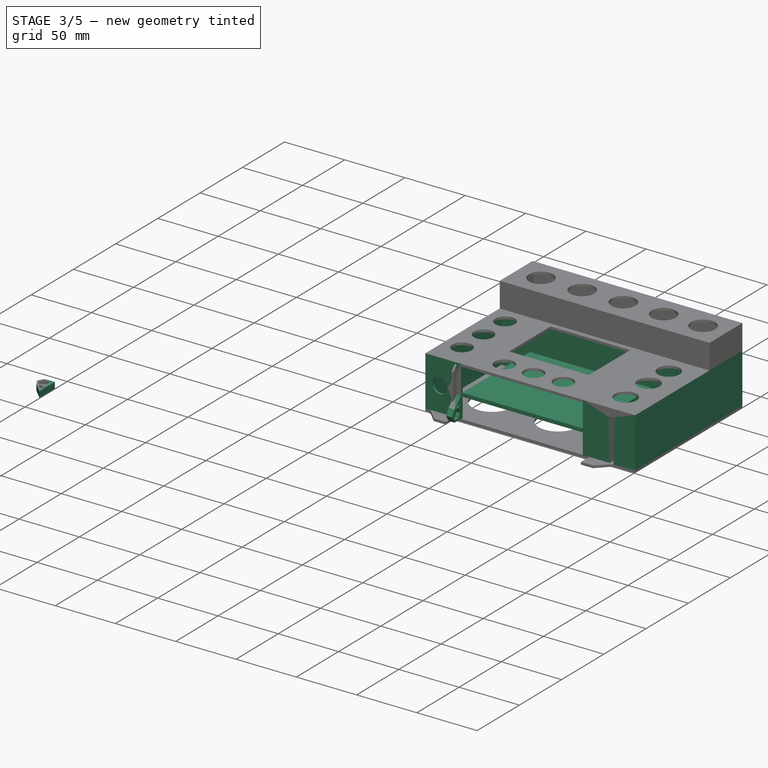
[diagram: stage 3 of 5 — iso view after this stage's code; geometry added in this stage tinted green]
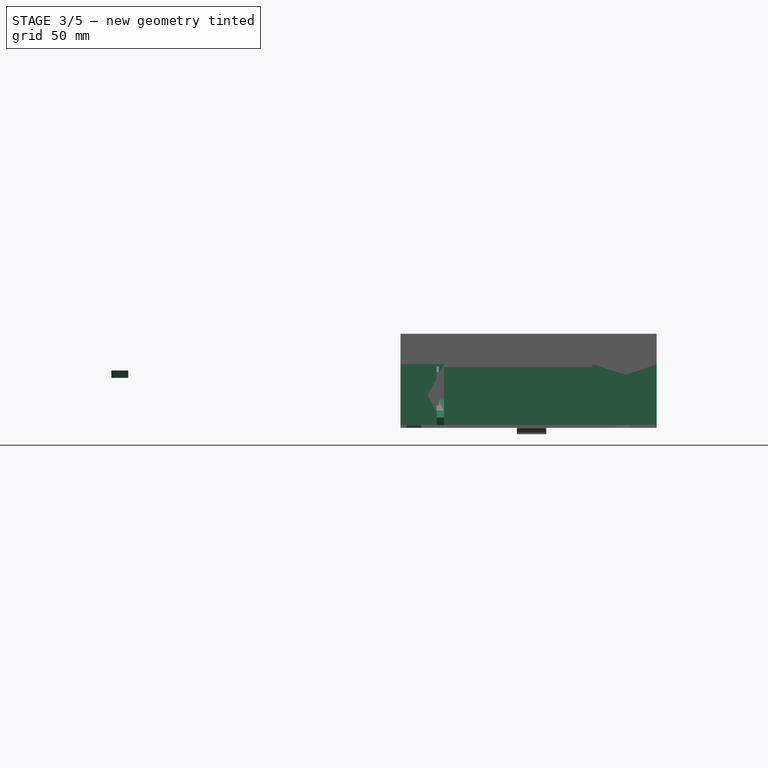
[diagram: stage 3 of 5 — front view after this stage's code; geometry added in this stage tinted green]
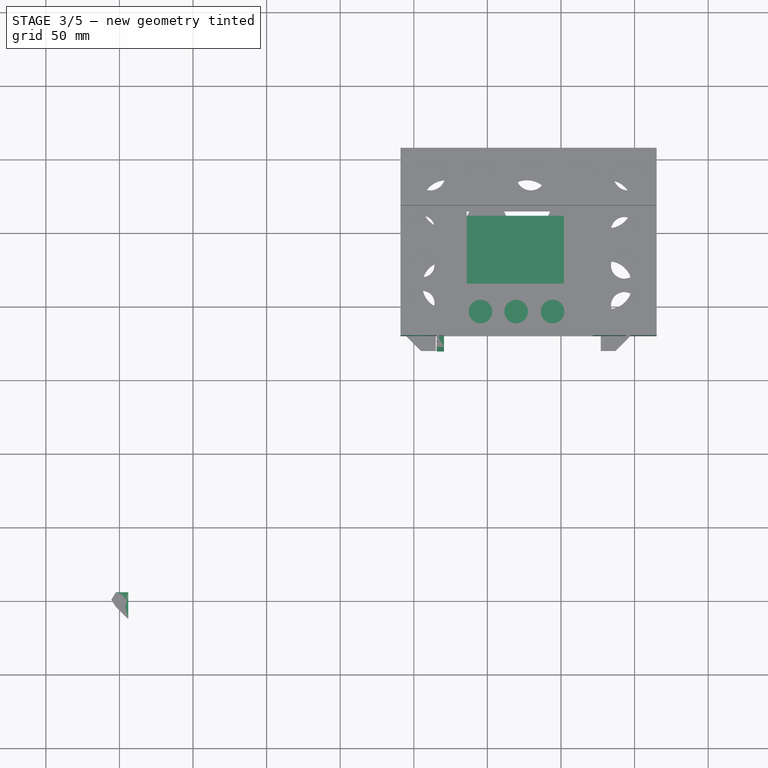
[diagram: stage 3 of 5 — top view after this stage's code; geometry added in this stage tinted green]
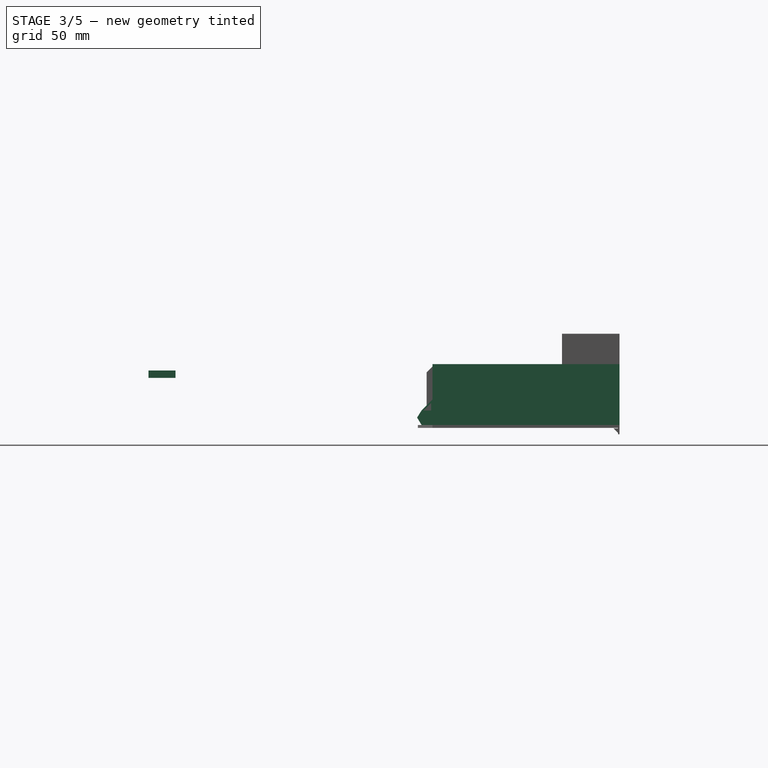
[diagram: stage 3 of 5 — right view after this stage's code; geometry added in this stage tinted green]
FEATURE [Sketcher::SketchObject] Sketch068
  FullyConstrained = true
  Placement = pos=(321.5,0,0) rot=(0.57735,0.57735,0.57735;2.0944rad)
  sketch-geometry (4):
    g0: LineSegment StartX=181.5 StartY=-18 StartZ=0 EndX=261.5 EndY=-18 EndZ=0
    g1: LineSegment StartX=261.5 StartY=-18 StartZ=0 EndX=261.5 EndY=-15 EndZ=0
    g2: LineSegment StartX=261.5 StartY=-15 StartZ=0 EndX=181.5 EndY=-15 EndZ=0
    g3: LineSegment StartX=181.5 StartY=-15 StartZ=0 EndX=181.5 EndY=-18 EndZ=0
  constraints (12):
    c: Coincident(g0,g1)
    c: Coincident(g1,g2)
    c: Coincident(g2,g3)
    c: Coincident(g3,g0)
    c: Horizontal(g0)
    c: Horizontal(g2)
    c: Vertical(g1)
    c: Vertical(g3)
    c: DistanceY(g2) = -15
    c: DistanceY(g3,g3) = 3
    c: DistanceX(g1) = 261.5
    c: DistanceX(g2) = 181.5
FEATURE [Part::Extrusion] Extrude058
  Base = -> Sketch068
  Dir = (1,0,0)
  DirMode = 2
  FaceMakerClass = Part::FaceMakerBullseye
  LengthFwd = 0
  LengthRev = 101
  Solid = true
  Symmetric = false
FEATURE [PartDesign::Body] Body013  label="power001"
  BaseFeature = -> Compound027
  Group = -> [Clone013]
  Origin = -> Origin013
  Placement = pos=(203,182,-14) rot=(1,0,0;1.5708rad)
  Tip = -> Clone013
FEATURE [Sketcher::SketchObject] Sketch133  label="path"
  FullyConstrained = true
  Placement = pos=(0,0,5.32) rot=(1,0,0;3.14159rad)
  sketch-geometry (5):
    g0: LineSegment StartX=220.5 StartY=-182 StartZ=0 EndX=193 EndY=-182 EndZ=0
    g1: LineSegment StartX=193 StartY=-182 StartZ=0 EndX=193 EndY=-305 EndZ=0
    g2: LineSegment StartX=193 StartY=-305 StartZ=0 EndX=363 EndY=-305 EndZ=0
    g3: LineSegment StartX=363 StartY=-305 StartZ=0 EndX=363 EndY=-182 EndZ=0
    g4: LineSegment StartX=363 StartY=-182 StartZ=0 EndX=321.5 EndY=-182 EndZ=0
  constraints (16):
    c: Horizontal(g0)
    c: Coincident(g0,g1)
    c: Vertical(g1)
    c: Coincident(g1,g2)
    c: Horizontal(g2)
    c: Coincident(g2,g3)
    c: Vertical(g3)
    c: Coincident(g3,g4)
    c: Horizontal(g4)
    c: DistanceX(g0) = 220.5
    c: DistanceY(g0) = -182
    c: DistanceX(g0) = 193
    c: DistanceY(g1) = -305
    c: Horizontal(g4,g0)
    c: DistanceX(g4) = 321.5
    c: DistanceX(g2,g2) = 170
FEATURE [Sketcher::SketchObject] Sketch  label="profile"
  FullyConstrained = true
  Placement = pos=(194,0,0) rot=(0.57735,-0.57735,-0.57735;2.0944rad)
  sketch-geometry (4):
    g0: LineSegment StartX=-182 StartY=7.32 StartZ=0 EndX=-180 EndY=7.32 EndZ=0
    g1: LineSegment StartX=-180 StartY=7.32 StartZ=0 EndX=-180 EndY=-34 EndZ=0
    g2: LineSegment StartX=-180 StartY=-34 StartZ=0 EndX=-182 EndY=-34 EndZ=0
    g3: LineSegment StartX=-182 StartY=-34 StartZ=0 EndX=-182 EndY=7.32 EndZ=0
  constraints (12):
    c: Coincident(g0,g1)
    c: Coincident(g1,g2)
    c: Coincident(g2,g3)
    c: Coincident(g3,g0)
    c: Horizontal(g0)
    c: Horizontal(g2)
    c: Vertical(g1)
    c: Vertical(g3)
    c: DistanceX(g0) = -182
    c: DistanceX(g0,g0) = 2
    c: DistanceY(g2) = -34
    c: DistanceY(g1,g1) = 41.32
FEATURE [Part::Sweep] Sweep
  Frenet = false
  Sections = -> [Sketch]
  Solid = true
  Spine = -> Sketch133
  Transition = 1
FEATURE [Sketcher::SketchObject] Sketch135
  FullyConstrained = true
  Placement = pos=(0,178,0) rot=(1,0,0;1.5708rad)
  sketch-geometry (1):
    g0: Circle CenterX=203 CenterY=-14 CenterZ=0 NormalX=0 NormalY=0 NormalZ=1 AngleXU=0 Radius=6.25
  constraints (3):
    c: Radius(g0) = 6.25
    c: DistanceX(g0) = 203
    c: DistanceY(g0) = -14
FEATURE [Part::Extrusion] Extrude123  label="power hole"
  Base = -> Sketch135
  Dir = (0,-1,-2e-16)
  DirMode = 2
  FaceMakerClass = Part::FaceMakerBullseye
  LengthFwd = 0
  LengthRev = 5
  Solid = true
  Symmetric = false
FEATURE [Sketcher::SketchObject] Sketch136
  FullyConstrained = true
  Placement = pos=(0,0,5.32) rot=(1,0,0;3.14159rad)
  sketch-geometry (4):
    g0: LineSegment StartX=191 StartY=-267 StartZ=0 EndX=338 EndY=-267 EndZ=0
    g1: LineSegment StartX=338 StartY=-267 StartZ=0 EndX=338 EndY=-269 EndZ=0
    g2: LineSegment StartX=338 StartY=-269 StartZ=0 EndX=191 EndY=-269 EndZ=0
    g3: LineSegment StartX=191 StartY=-269 StartZ=0 EndX=191 EndY=-267 EndZ=0
  constraints (12):
    c: Coincident(g0,g1)
    c: Coincident(g1,g2)
    c: Coincident(g2,g3)
    c: Coincident(g3,g0)
    c: Horizontal(g0)
    c: Horizontal(g2)
    c: Vertical(g1)
    c: Vertical(g3)
    c: DistanceX(g0) = 191
    c: DistanceY(g3,g3) = 2
    c: DistanceX(g2,g2) = 147
    c: DistanceY(g2) = -269
FEATURE [Part::Extrusion] Extrude124  label="partition"
  Base = -> Sketch136
  Dir = (0,0,-1)
  DirMode = 2
  FaceMakerClass = Part::FaceMakerBullseye
  LengthFwd = 39.32
  LengthRev = 0
  Solid = true
  Symmetric = false
FEATURE [Sketcher::SketchObject] Sketch143
  FullyConstrained = true
  expr: Constraints[13] = -Spreadsheet.r - 1.5
  sketch-geometry (5):
    g0: LineSegment StartX=6 StartY=5.36 StartZ=0 EndX=6 EndY=-12.96 EndZ=0
    g1: LineSegment StartX=6 StartY=5.36 StartZ=0 EndX=-2.46 EndY=5.36 EndZ=0
    g2: LineSegment StartX=-2.46 StartY=-4.5 StartZ=0 EndX=6 EndY=-12.96 EndZ=0
    g3: LineSegment StartX=-2.46 StartY=5.36 StartZ=0 EndX=-5.5 EndY=0.32 EndZ=0
    g4: LineSegment StartX=-5.5 StartY=0.32 StartZ=0 EndX=-2.46 EndY=-4.5 EndZ=0
  constraints (15):
    c: DistanceX(g0) = 6
    c: Vertical(g0)
    c: Horizontal(g1)
    c: DistanceY(g1) = 5.36
    c: Coincident(g0,g1)
    c: Coincident(g0,g2)
    c: Angle(g0,g2,g0) = 0.785398
    c: DistanceY(g0,g0) = 18.32
    c: Coincident(g3,g1)
    c: Coincident(g4,g2)
    c: Coincident(g3,g4)
    c: DistanceY(g3) = 0.32
    c: Vertical(g2,g1)
    c: DistanceX(g3) = -5.5
    c: DistanceY(g2) = -4.5
FEATURE [Part::Extrusion] Extrude131
  Base = -> Sketch143
  Dir = (0,0,1)
  DirMode = 2
  FaceMakerClass = Part::FaceMakerBullseye
  LengthFwd = 3
  LengthRev = 2
  Solid = true
  Symmetric = false
FEATURE [Part::Compound] Compound032
  Links = -> [Extrude133,Extrude132]
FEATURE [Part::Cut] Cut007  label="captive nut003"
  Base = -> Extrude131
  Tool = -> Compound032
FEATURE [PartDesign::FeatureBase] Clone014
  BaseFeature = -> Cut007
FEATURE [PartDesign::Body] Body014  label="captive nut001"
  BaseFeature = -> Cut007
  Group = -> [Clone014]
  Origin = -> Origin014
  Placement = pos=(324.5,175,-28.64) rot=(-0.576467,-0.576467,0.579113;2.0944rad)
  Tip = -> Clone014
FEATURE [PartDesign::FeatureBase] Clone015
  BaseFeature = -> Cut007
FEATURE [PartDesign::Body] Body015  label="captive nut"
  BaseFeature = -> Cut007
  Group = -> [Clone015]
  Origin = -> Origin015
  Placement = pos=(324.5,175,7.3e-14) rot=(0.57735,0.57735,-0.57735;4.18879rad)
  Tip = -> Clone015
FEATURE [Part::Mirroring] Part__Mirroring001  label="captive nut (Mirror #2)"
  Base = (0,0,0)
  Normal = (0,0,1)
  Placement = pos=(542,0,-28.64) rot=(0,1,0;3.14159rad)
  Source = -> Body015
FEATURE [Part::Compound] Compound028
  Links = -> [Extrude123,Extrude135,Extrude141,Extrude143,Sweep002]
FEATURE [Part::Cut] Cut  label="walls"
  Base = -> Sweep
  Tool = -> Compound028
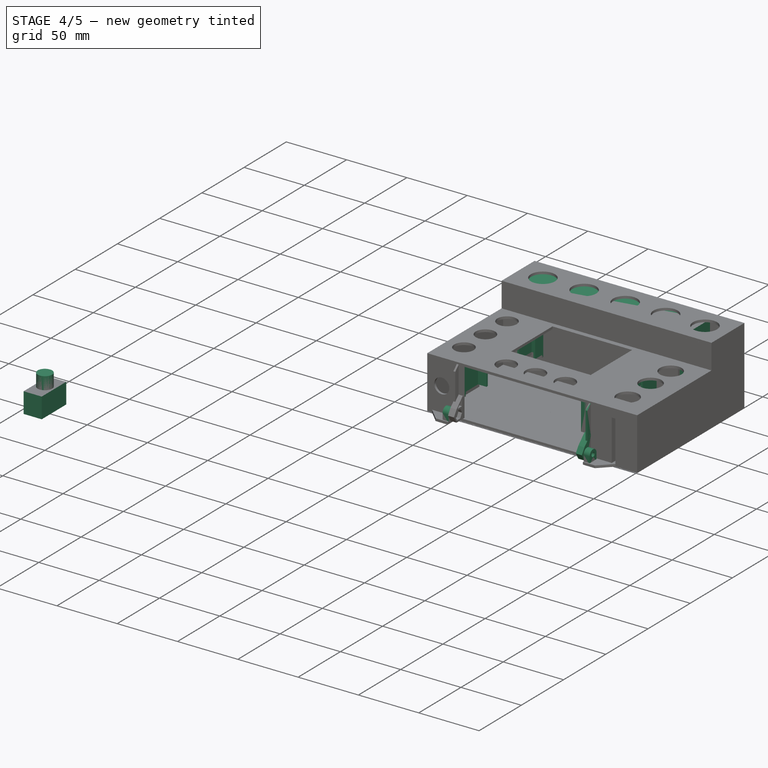
[diagram: stage 4 of 5 — iso view after this stage's code; geometry added in this stage tinted green]
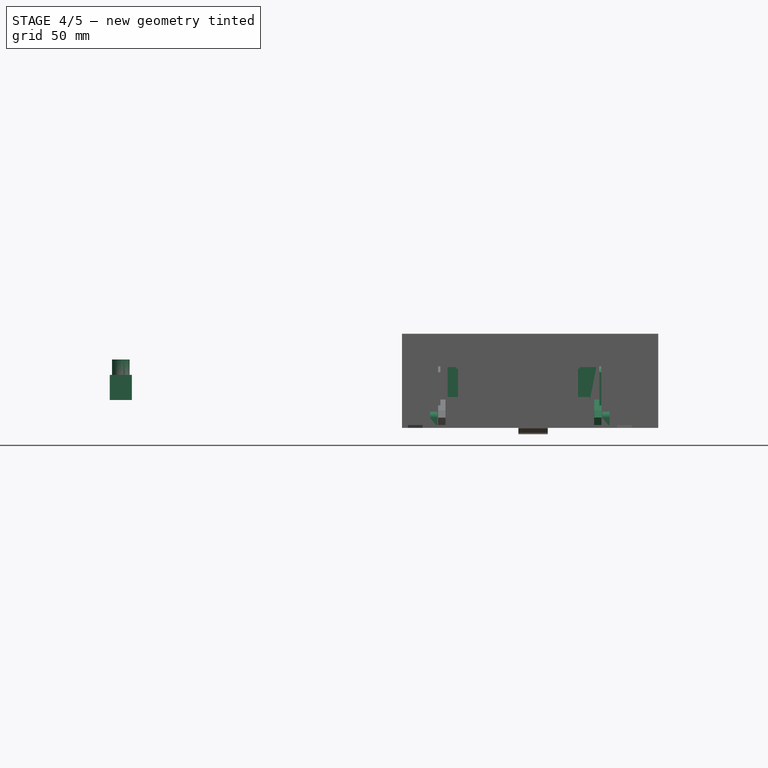
[diagram: stage 4 of 5 — front view after this stage's code; geometry added in this stage tinted green]
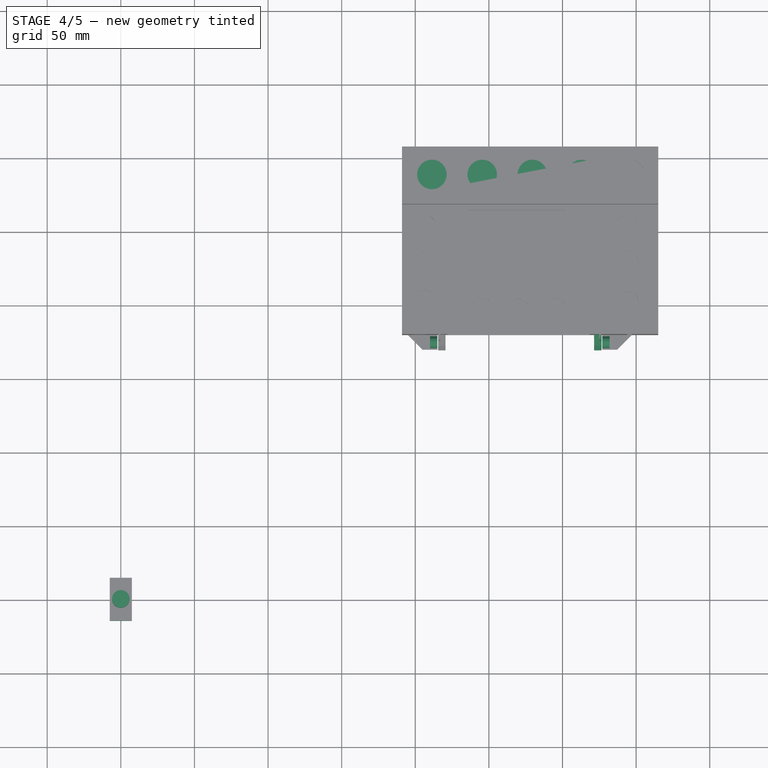
[diagram: stage 4 of 5 — top view after this stage's code; geometry added in this stage tinted green]
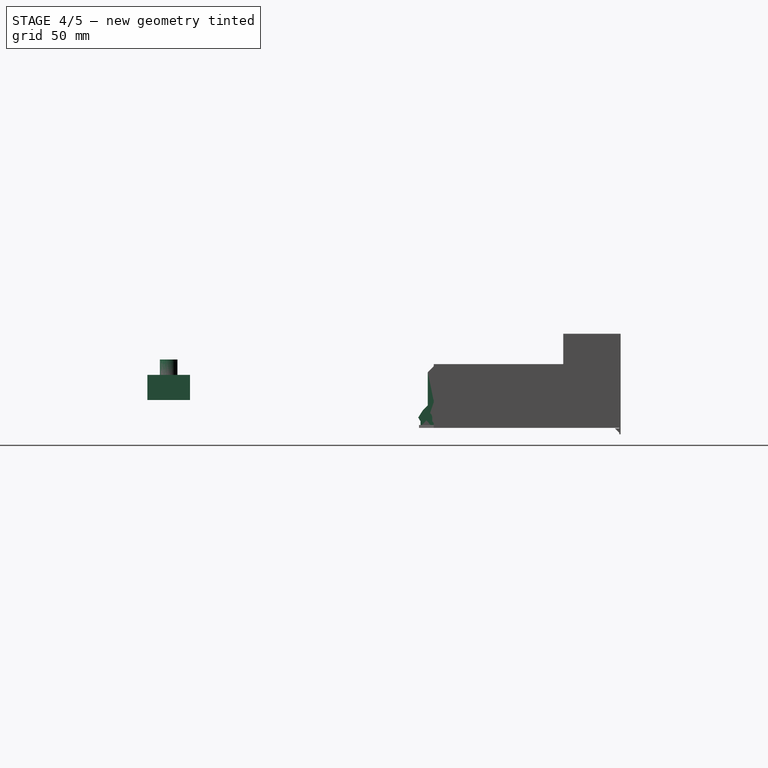
[diagram: stage 4 of 5 — right view after this stage's code; geometry added in this stage tinted green]
FEATURE [Sketcher::SketchObject] Sketch032
  FullyConstrained = true
  Placement = pos=(0,0,5.32) rot=(1,0,0;3.14159rad)
  sketch-geometry (16):
    g0: LineSegment StartX=322.5 StartY=-213.5 StartZ=0 EndX=322.5 EndY=-239.5 EndZ=0
    g1: LineSegment StartX=322.5 StartY=-239.5 StartZ=0 EndX=310.5 EndY=-239.5 EndZ=0
    g2: LineSegment StartX=310.5 StartY=-239.5 StartZ=0 EndX=310.5 EndY=-240.5 EndZ=0
    g3: LineSegment StartX=310.5 StartY=-240.5 StartZ=0 EndX=323.5 EndY=-240.5 EndZ=0
    g4: LineSegment StartX=323.5 StartY=-240.5 StartZ=0 EndX=323.5 EndY=-212.5 EndZ=0
    g5: LineSegment StartX=219.5 StartY=-213.5 StartZ=0 EndX=219.5 EndY=-239.5 EndZ=0
    g6: LineSegment StartX=219.5 StartY=-239.5 StartZ=0 EndX=231.5 EndY=-239.5 EndZ=0
    g7: LineSegment StartX=231.5 StartY=-239.5 StartZ=0 EndX=231.5 EndY=-240.5 EndZ=0
    g8: LineSegment StartX=231.5 StartY=-240.5 StartZ=0 EndX=218.5 EndY=-240.5 EndZ=0
    g9: LineSegment StartX=218.5 StartY=-240.5 StartZ=0 EndX=218.5 EndY=-212.5 EndZ=0
    g10: LineSegment StartX=219.5 StartY=-213.5 StartZ=0 EndX=231.5 EndY=-213.5 EndZ=0
    g11: LineSegment StartX=231.5 StartY=-213.5 StartZ=0 EndX=231.5 EndY=-212.5 EndZ=0
    g12: LineSegment StartX=231.5 StartY=-212.5 StartZ=0 EndX=218.5 EndY=-212.5 EndZ=0
    g13: LineSegment StartX=322.5 StartY=-213.5 StartZ=0 EndX=310.5 EndY=-213.5 EndZ=0
    g14: LineSegment StartX=310.5 StartY=-213.5 StartZ=0 EndX=310.5 EndY=-212.5 EndZ=0
    g15: LineSegment StartX=310.5 StartY=-212.5 StartZ=0 EndX=323.5 EndY=-212.5 EndZ=0
  constraints (48):
    c: Vertical(g0)
    c: Coincident(g0,g1)
    c: Horizontal(g1)
    c: Coincident(g1,g2)
    c: Vertical(g2)
    c: Coincident(g2,g3)
    c: Horizontal(g3)
    c: Coincident(g3,g4)
    c: Vertical(g4)
    c: Vertical(g5)
    c: Coincident(g5,g6)
    c: Horizontal(g6)
    c: Coincident(g6,g7)
    c: Vertical(g7)
    c: Coincident(g7,g8)
    c: Horizontal(g8)
    c: Coincident(g8,g9)
    c: Vertical(g9)
    c: DistanceX(g9,g5) = 1
    c: DistanceX(g5) = 219.5
    c: DistanceY(g5) = -213.5
    c: DistanceY(g8,g5) = 1
    c: DistanceX(g6,g6) = 12
    c: Horizontal(g0,g5)
    c: Horizontal(g7,g2)
    c: DistanceY(g2,g2) = 1
    c: DistanceX(g0,g4) = 1
    c: DistanceX(g5,g0) = 103
    c: DistanceX(g1,g1) = 12
    c: DistanceY(g5,g5) = 26
    c: DistanceY(g5,g9) = 1
    c: Coincident(g5,g10)
    c: Horizontal(g10)
    c: Coincident(g10,g11)
    c: Vertical(g11)
    c: Coincident(g11,g12)
    c: Coincident(g12,g9)
    c: Horizontal(g12)
    c: Vertical(g10,g6)
    c: Coincident(g0,g13)
    c: Horizontal(g13)
    c: Coincident(g13,g14)
    c: Vertical(g14)
    c: Coincident(g14,g15)
    c: Coincident(g15,g4)
    c: Horizontal(g15)
    c: DistanceY(g14,g14) = 1
    c: Vertical(g13,g1)
FEATURE [Part::Extrusion] Extrude026  label="jetson align"
  Base = -> Sketch032
  Dir = (0,0,-1)
  DirMode = 2
  FaceMakerClass = Part::FaceMakerBullseye
  LengthFwd = 1
  LengthRev = 0
  Solid = true
  Symmetric = false
FEATURE [Sketcher::SketchObject] Sketch067
  FullyConstrained = true
  Placement = pos=(0,0,5.32) rot=(1,0,0;3.14159rad)
  sketch-geometry (32):
    g0: LineSegment StartX=321.5 StartY=-246.5 StartZ=0 EndX=323 EndY=-246.5 EndZ=0
    g1: LineSegment StartX=323 StartY=-246.5 StartZ=0 EndX=323 EndY=-263 EndZ=0
    g2: LineSegment StartX=323 StartY=-263 StartZ=0 EndX=310.5 EndY=-263 EndZ=0
    g3: LineSegment StartX=310.5 StartY=-263 StartZ=0 EndX=310.5 EndY=-255 EndZ=0
    g4: LineSegment StartX=310.5 StartY=-255 StartZ=0 EndX=312 EndY=-255 EndZ=0
    g5: LineSegment StartX=312 StartY=-255 StartZ=0 EndX=312 EndY=-261.5 EndZ=0
    g6: LineSegment StartX=312 StartY=-261.5 StartZ=0 EndX=321.5 EndY=-261.5 EndZ=0
    g7: LineSegment StartX=321.5 StartY=-261.5 StartZ=0 EndX=321.5 EndY=-246.5 EndZ=0
    g8: LineSegment StartX=220.5 StartY=-246.5 StartZ=0 EndX=220.5 EndY=-261.5 EndZ=0
    g9: LineSegment StartX=220.5 StartY=-261.5 StartZ=0 EndX=227.5 EndY=-261.5 EndZ=0
    g10: LineSegment StartX=227.5 StartY=-261.5 StartZ=0 EndX=227.5 EndY=-253.5 EndZ=0
    g11: LineSegment StartX=227.5 StartY=-253.5 StartZ=0 EndX=229 EndY=-253.5 EndZ=0
    g12: LineSegment StartX=229 StartY=-253.5 StartZ=0 EndX=229 EndY=-263 EndZ=0
    g13: LineSegment StartX=229 StartY=-263 StartZ=0 EndX=219 EndY=-263 EndZ=0
    g14: LineSegment StartX=219 StartY=-263 StartZ=0 EndX=219 EndY=-246.5 EndZ=0
    g15: LineSegment StartX=219 StartY=-246.5 StartZ=0 EndX=220.5 EndY=-246.5 EndZ=0
    g16: LineSegment StartX=227.5 StartY=-199.5 StartZ=0 EndX=227.5 EndY=-198 EndZ=0
    g17: LineSegment StartX=227.5 StartY=-198 StartZ=0 EndX=220.5 EndY=-198 EndZ=0
    g18: LineSegment StartX=220.5 StartY=-198 StartZ=0 EndX=220.5 EndY=-181.5 EndZ=0
    g19: LineSegment StartX=220.5 StartY=-181.5 StartZ=0 EndX=222 EndY=-181.5 EndZ=0
    g20: LineSegment StartX=222 StartY=-181.5 StartZ=0 EndX=222 EndY=-180 EndZ=0
    g21: LineSegment StartX=222 StartY=-180 StartZ=0 EndX=219 EndY=-180 EndZ=0
    g22: LineSegment StartX=219 StartY=-180 StartZ=0 EndX=219 EndY=-199.5 EndZ=0
    g23: LineSegment StartX=219 StartY=-199.5 StartZ=0 EndX=227.5 EndY=-199.5 EndZ=0
    g24: LineSegment StartX=311.5 StartY=-199.5 StartZ=0 EndX=311.5 EndY=-198 EndZ=0
    g25: LineSegment StartX=311.5 StartY=-198 StartZ=0 EndX=321.5 EndY=-198 EndZ=0
    g26: LineSegment StartX=321.5 StartY=-198 StartZ=0 EndX=321.5 EndY=-181.5 EndZ=0
    g27: LineSegment StartX=321.5 StartY=-181.5 StartZ=0 EndX=318.5 EndY=-181.5 EndZ=0
    g28: LineSegment StartX=318.5 StartY=-181.5 StartZ=0 EndX=318.5 EndY=-180 EndZ=0
    g29: LineSegment StartX=318.5 StartY=-180 StartZ=0 EndX=323 EndY=-180 EndZ=0
    g30: LineSegment StartX=323 StartY=-180 StartZ=0 EndX=323 EndY=-199.5 EndZ=0
    g31: LineSegment StartX=323 StartY=-199.5 StartZ=0 EndX=311.5 EndY=-199.5 EndZ=0
  constraints (96):
    c: Horizontal(g0)
    c: Coincident(g0,g1)
    c: Vertical(g1)
    c: Coincident(g1,g2)
    c: Horizontal(g2)
    c: Coincident(g2,g3)
    c: Vertical(g3)
    c: Coincident(g3,g4)
    c: Horizontal(g4)
    c: Coincident(g4,g5)
    c: Vertical(g5)
    c: Coincident(g5,g6)
    c: Horizontal(g6)
    c: Coincident(g6,g7)
    c: Coincident(g7,g0)
    c: Vertical(g7)
    c: DistanceX(g0) = 321.5
    c: DistanceX(g6,g6) = 9.5
    c: DistanceX(g4,g4) = 1.5
    c: DistanceX(g0,g0) = 1.5
    c: DistanceY(g6) = -261.5
    c: DistanceY(g7,g7) = 15
    c: DistanceY(g1,g6) = 1.5
    c: DistanceY(g3,g3) = 8
    c: Vertical(g8)
    c: Coincident(g8,g9)
    c: Horizontal(g9)
    c: Coincident(g9,g10)
    c: Vertical(g10)
    c: Coincident(g10,g11)
    c: Horizontal(g11)
    c: Coincident(g11,g12)
    c: Vertical(g12)
    c: Coincident(g12,g13)
    c: Horizontal(g13)
    c: Coincident(g13,g14)
    c: Vertical(g14)
    c: Coincident(g14,g15)
    c: Coincident(g15,g8)
    c: Horizontal(g15)
    c: Horizontal(g9,g5)
    c: Horizontal(g2,g12)
    c: DistanceX(g15,g15) = 1.5
    c: DistanceX(g8) = 220.5
    c: Horizontal(g8,g0)
    c: DistanceX(g11,g11) = 1.5
    c: DistanceX(g13,g13) = 10
    c: DistanceY(g10,g10) = 8
    c: Vertical(g16)
    c: Coincident(g16,g17)
    c: Horizontal(g17)
    c: Coincident(g17,g18)
    c: Vertical(g18)
    c: Coincident(g18,g19)
    c: Horizontal(g19)
    c: Coincident(g19,g20)
    c: Vertical(g20)
    c: Coincident(g20,g21)
    c: Horizontal(g21)
    c: Coincident(g21,g22)
    c: Vertical(g22)
    c: Coincident(g22,g23)
    c: Coincident(g23,g16)
    c: Horizontal(g23)
    c: DistanceY(g16,g16) = 1.5
    c: DistanceY(g20,g20) = 1.5
    c: DistanceY(g18) = -181.5
    c: Vertical(g17,g8)
    c: Vertical(g22,g14)
    c: DistanceY(g22) = -199.5
    c: DistanceX(g17,g17) = 7
    c: DistanceX(g19,g19) = 1.5
    c: Coincident(g24,g25)
    c: Horizontal(g25)
    c: Coincident(g25,g26)
    c: Vertical(g26)
    c: Coincident(g26,g27)
    c: Horizontal(g27)
    c: Coincident(g27,g28)
    c: Vertical(g28)
    c: Coincident(g28,g29)
    c: Horizontal(g29)
    c: Coincident(g29,g30)
    c: Vertical(g30)
    c: Coincident(g30,g31)
    c: Coincident(g31,g24)
    c: Horizontal(g31)
    c: Vertical(g24)
    c: DistanceY(g24,g24) = 1.5
    c: DistanceY(g28,g28) = 1.5
    c: DistanceX(g26,g29) = 1.5
    c: Vertical(g25,g0)
    c: Horizontal(g16,g24)
    c: Horizontal(g27,g19)
    c: DistanceX(g25,g25) = 10
    c: DistanceX(g27,g27) = 3
FEATURE [Part::Extrusion] Extrude057
  Base = -> Sketch067
  Dir = (0,0,-1)
  DirMode = 2
  FaceMakerClass = Part::FaceMakerBullseye
  LengthFwd = 22.64
  LengthRev = 0
  Solid = true
  Symmetric = false
FEATURE [Part::Cut] Cut005  label="jetson align001"
  Base = -> Extrude057
  Tool = -> Extrude058
FEATURE [PartDesign::Body] Body
  BaseFeature = -> Compound
  Group = -> [Clone]
  Origin = -> Origin
  Placement = pos=(321,261,-17) rot=(0.707107,-0.707107,0;3.14159rad)
  Tip = -> Clone
FEATURE [Sketcher::SketchObject] Sketch131
  FullyConstrained = true
  sketch-geometry (1):
    g0: Circle CenterX=0 CenterY=0 CenterZ=0 NormalX=0 NormalY=0 NormalZ=1 AngleXU=0 Radius=6
  constraints (2):
    c: Coincident(g0,g-1)
    c: Radius(g0) = 6
FEATURE [Part::Extrusion] Extrude121
  Base = -> Sketch131
  Dir = (0,0,1)
  DirMode = 2
  FaceMakerClass = Part::FaceMakerBullseye
  LengthFwd = 10.5
  LengthRev = 0
  Solid = true
  Symmetric = false
FEATURE [Sketcher::SketchObject] Sketch132
  FullyConstrained = true
  sketch-geometry (4):
    g0: LineSegment StartX=-7.5 StartY=14.5 StartZ=0 EndX=7.5 EndY=14.5 EndZ=0
    g1: LineSegment StartX=7.5 StartY=14.5 StartZ=0 EndX=7.5 EndY=-14.5 EndZ=0
    g2: LineSegment StartX=7.5 StartY=-14.5 StartZ=0 EndX=-7.5 EndY=-14.5 EndZ=0
    g3: LineSegment StartX=-7.5 StartY=-14.5 StartZ=0 EndX=-7.5 EndY=14.5 EndZ=0
  constraints (12):
    c: Coincident(g0,g1)
    c: Coincident(g1,g2)
    c: Coincident(g2,g3)
    c: Coincident(g3,g0)
    c: Horizontal(g0)
    c: Horizontal(g2)
    c: Vertical(g1)
    c: Vertical(g3)
    c: DistanceX(g0,g0) = 15
    c: DistanceY(g1,g1) = 29
    c: DistanceX(g0) = 7.5
    c: DistanceY(g0) = 14.5
FEATURE [Part::Extrusion] Extrude122
  Base = -> Sketch132
  Dir = (0,0,1)
  DirMode = 2
  FaceMakerClass = Part::FaceMakerBullseye
  LengthFwd = 0
  LengthRev = 17
  Solid = true
  Symmetric = false
FEATURE [Part::Compound] Compound027  label="power"
  Links = -> [Extrude122,Extrude121]
FEATURE [Part::Box] Box001  label="battery"
  AttacherType = Attacher::AttachEngine3D
  Height = 28
  Length = 50
  Placement = pos=(340,274,26) rot=(0.57735,-0.57735,-0.57735;4.18879rad)
  Width = 145
FEATURE [Sketcher::SketchObject] Sketch137
  FullyConstrained = false
  Placement = pos=(193.5,0,0) rot=(0.57735,0.57735,0.57735;2.0944rad)
  sketch-geometry (4):
    g0: LineSegment StartX=182 StartY=-34 StartZ=0 EndX=305 EndY=-34 EndZ=0
    g1: LineSegment StartX=305 StartY=-36 StartZ=0 EndX=182 EndY=-36 EndZ=0
    g2: LineSegment StartX=182 StartY=-36 StartZ=0 EndX=182 EndY=-34 EndZ=0
    g3: LineSegment StartX=305 StartY=-34 StartZ=0 EndX=305 EndY=-36 EndZ=0
  constraints (8):
    c: Horizontal(g0)
    c: Horizontal(g1)
    c: Coincident(g1,g2)
    c: Coincident(g2,g0)
    c: Vertical(g2)
    c: Coincident(g3,g0)
    c: Coincident(g3,g1)
    c: Vertical(g3)
FEATURE [Part::Extrusion] Extrude125  label="lid"
  Base = -> Sketch137
  Dir = (1,-2e-16,2e-16)
  DirMode = 2
  FaceMakerClass = Part::FaceMakerBullseye
  LengthFwd = 169
  LengthRev = 0
  Solid = true
  Symmetric = false
FEATURE [Spreadsheet::Sheet] Spreadsheet
  cells = A1=r; B1(r)=4; A2=r2; B2(r2)=1.8
FEATURE [Sketcher::SketchObject] Sketch139
  FullyConstrained = true
  Placement = pos=(215,0,0) rot=(0.57735,-0.57735,-0.57735;2.0944rad)
  expr: Constraints[0] = Spreadsheet.r2
  sketch-geometry (5):
    g0: Circle CenterX=-175 CenterY=5e-16 CenterZ=0 NormalX=0 NormalY=0 NormalZ=1 AngleXU=0 Radius=1.8
    g1: ArcOfCircle CenterX=-175 CenterY=5e-16 CenterZ=0 NormalX=0 NormalY=0 NormalZ=1 AngleXU=0 Radius=4 StartAngle=3.14159 EndAngle=6.28319
    g2: LineSegment StartX=-179 StartY=-8e-16 StartZ=0 EndX=-179 EndY=6.32 EndZ=0
    g3: LineSegment StartX=-179 StartY=6.32 StartZ=0 EndX=-171 EndY=6.32 EndZ=0
    g4: LineSegment StartX=-171 StartY=6.32 StartZ=0 EndX=-171 EndY=-9e-16 EndZ=0
  constraints (14):
    c: Radius(g0) = 1.8
    c: Coincident(g1,g0)
    c: PointOnObject(g1,g-1)
    c: Tangent(g1,g2) = 1.5708
    c: Coincident(g2,g3)
    c: Horizontal(g3)
    c: Coincident(g3,g4)
    c: Coincident(g4,g1)
    c: Vertical(g4)
    c: DistanceY(g2) = 6.32
    c: DistanceX(g0) = -175
    c: Radius(g1) = 4
    c: Vertical(g2)
    c: Tangent(g1,g4,g1) = 1.5708
FEATURE [Part::Extrusion] Extrude127  label="hinge002"
  Base = -> Sketch139
  Dir = (-1,0,0)
  DirMode = 2
  FaceMakerClass = Part::FaceMakerBullseye
  LengthFwd = 5
  LengthRev = 0
  Solid = true
  Symmetric = false
FEATURE [PartDesign::FeatureBase] Clone016
  BaseFeature = -> Extrude127
FEATURE [PartDesign::Body] Body016  label="hinge001"
  BaseFeature = -> Extrude127
  Group = -> [Clone016]
  Origin = -> Origin016
  Placement = pos=(117,350,-29) rot=(1,0,0;3.14159rad)
  Tip = -> Clone016
FEATURE [PartDesign::FeatureBase] Clone017
  BaseFeature = -> Extrude127
FEATURE [Part::Compound] Compound030  label="lid002"
  Links = -> [Body017,Body016,Cut009]
FEATURE [Part::Compound] Compound033  label="bathtub"
  Links = -> [Extrude134,Cut,Cut005,Extrude026,Body014,Part__Mirroring001,Cut008,Extrude124,Extrude146,Body020]
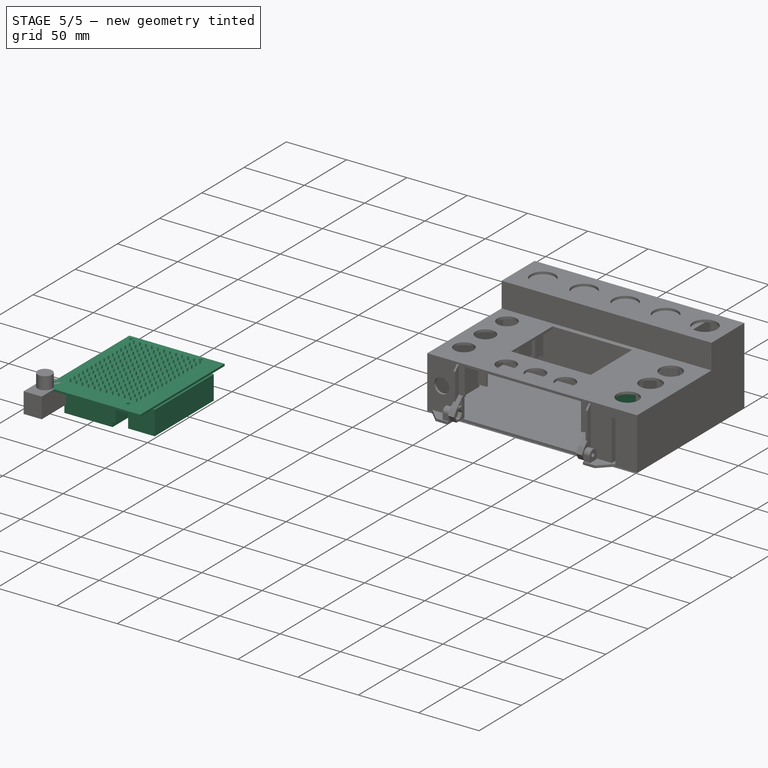
[diagram: stage 5 of 5 — iso view after this stage's code; geometry added in this stage tinted green]
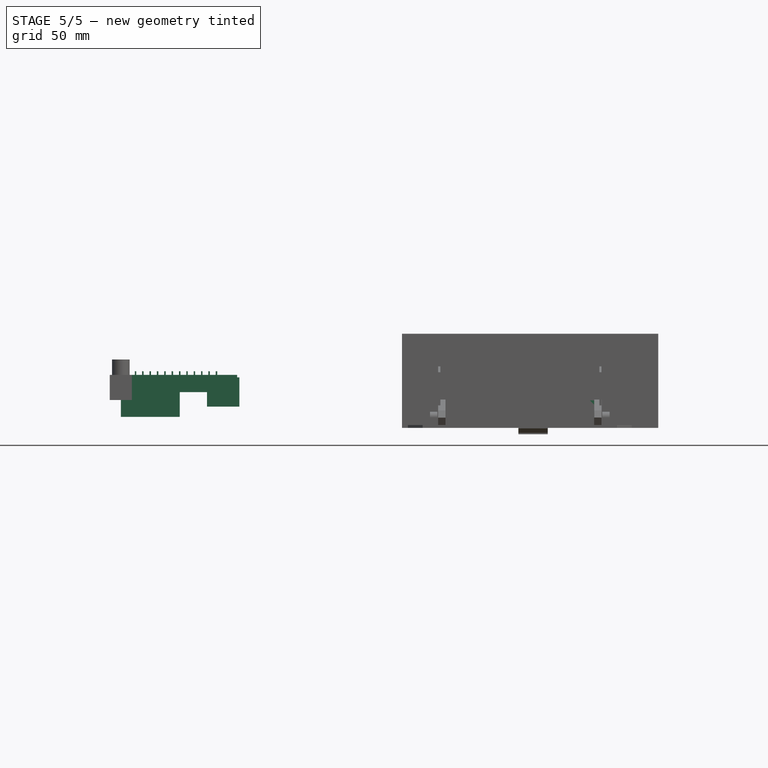
[diagram: stage 5 of 5 — front view after this stage's code; geometry added in this stage tinted green]
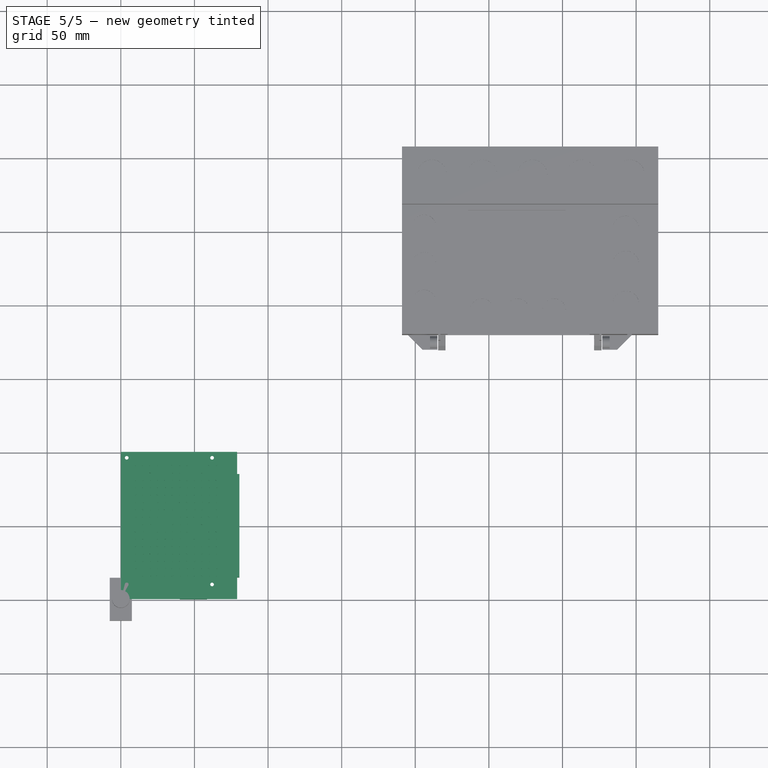
[diagram: stage 5 of 5 — top view after this stage's code; geometry added in this stage tinted green]
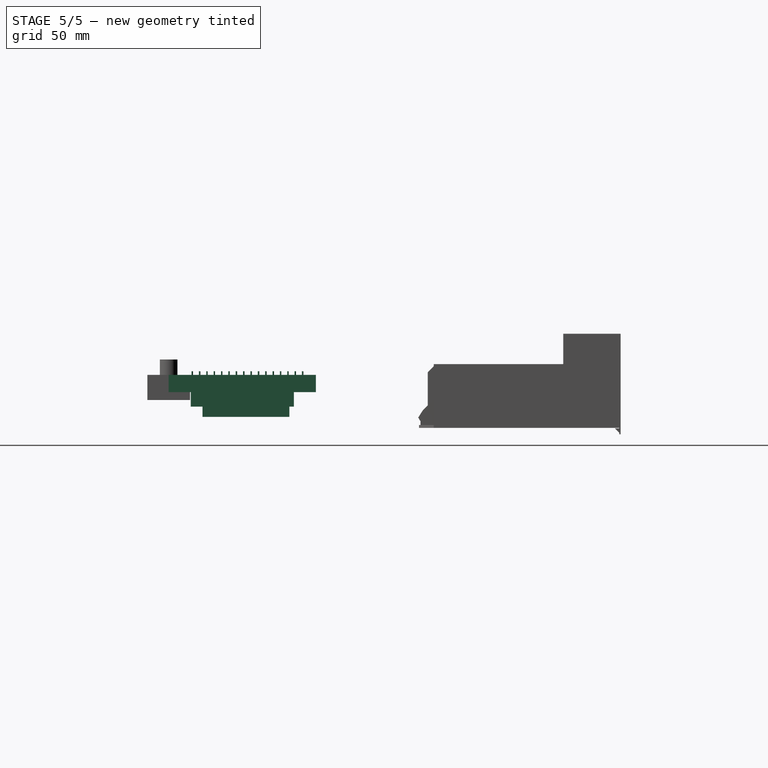
[diagram: stage 5 of 5 — right view after this stage's code; geometry added in this stage tinted green]
FEATURE [Sketcher::SketchObject] Sketch015
  FullyConstrained = true
  Placement = pos=(0,0,0) rot=(1,0,0;3.14159rad)
  sketch-geometry (8):
    g0: LineSegment StartX=0 StartY=0 StartZ=0 EndX=79 EndY=0 EndZ=0
    g1: LineSegment StartX=79 StartY=0 StartZ=0 EndX=79 EndY=-100 EndZ=0
    g2: LineSegment StartX=79 StartY=-100 StartZ=0 EndX=0 EndY=-100 EndZ=0
    g3: LineSegment StartX=0 StartY=-100 StartZ=0 EndX=0 EndY=0 EndZ=0
    g4: Circle CenterX=4 CenterY=-10 CenterZ=0 NormalX=0 NormalY=0 NormalZ=1 AngleXU=0 Radius=1.25
    g5: Circle CenterX=62 CenterY=-10 CenterZ=0 NormalX=0 NormalY=0 NormalZ=1 AngleXU=0 Radius=1.25
    g6: Circle CenterX=4 CenterY=-96 CenterZ=0 NormalX=0 NormalY=0 NormalZ=1 AngleXU=0 Radius=1.25
    g7: Circle CenterX=62 CenterY=-96 CenterZ=0 NormalX=0 NormalY=0 NormalZ=1 AngleXU=0 Radius=1.25
  constraints (23):
    c: Coincident(g0,g1)
    c: Coincident(g1,g2)
    c: Coincident(g2,g3)
    c: Coincident(g3,g0)
    c: Horizontal(g0)
    c: Horizontal(g2)
    c: Vertical(g1)
    c: Vertical(g3)
    c: Coincident(g0,g-1)
    c: DistanceX(g0,g0) = 79
    c: DistanceY(g3,g3) = 100
    c: DistanceX(g4) = 4
    c: DistanceY(g4) = -10
    c: Radius(g4) = 1.25
    c: Equal(g4,g5) = 1.25
    c: Equal(g4,g6) = 1.25
    c: Equal(g4,g7) = 1.25
    c: DistanceY(g6) = -96
    c: Vertical(g6,g4)
    c: Horizontal(g4,g5)
    c: Horizontal(g7,g6)
    c: DistanceX(g5) = 62
    c: Vertical(g7,g5)
FEATURE [Part::Extrusion] Extrude010  label="jetson"
  Base = -> Sketch015
  Dir = (0,0,-1)
  DirMode = 2
  FaceMakerClass = Part::FaceMakerBullseye
  LengthFwd = 1.7
  LengthRev = 0
  Solid = true
  Symmetric = false
FEATURE [Sketcher::SketchObject] Sketch018
  FullyConstrained = true
  Placement = pos=(0,0,-1.7) rot=(1,0,0;3.14159rad)
  sketch-geometry (4):
    g0: LineSegment StartX=0 StartY=-23 StartZ=0 EndX=40 EndY=-23 EndZ=0
    g1: LineSegment StartX=40 StartY=-23 StartZ=0 EndX=40 EndY=-82 EndZ=0
    g2: LineSegment StartX=40 StartY=-82 StartZ=0 EndX=0 EndY=-82 EndZ=0
    g3: LineSegment StartX=0 StartY=-82 StartZ=0 EndX=0 EndY=-23 EndZ=0
  constraints (12):
    c: Coincident(g0,g1)
    c: Coincident(g1,g2)
    c: Coincident(g2,g3)
    c: Coincident(g3,g0)
    c: Horizontal(g0)
    c: Horizontal(g2)
    c: Vertical(g1)
    c: Vertical(g3)
    c: DistanceX(g0,g0) = 40
    c: DistanceY(g3,g3) = 59
    c: PointOnObject(g0,g-2)
    c: DistanceY(g0) = -23
FEATURE [Part::Extrusion] Extrude013
  Base = -> Sketch018
  Dir = (0,-1e-16,-1)
  DirMode = 2
  FaceMakerClass = Part::FaceMakerBullseye
  LengthFwd = 26.8
  LengthRev = 0
  Solid = true
  Symmetric = false
FEATURE [Sketcher::SketchObject] Sketch019
  FullyConstrained = true
  Placement = pos=(0,0,-1.7) rot=(1,0,0;3.14159rad)
  sketch-geometry (4):
    g0: LineSegment StartX=80.5 StartY=-85 StartZ=0 EndX=58.5 EndY=-85 EndZ=0
    g1: LineSegment StartX=58.5 StartY=-85 StartZ=0 EndX=58.5 EndY=-15 EndZ=0
    g2: LineSegment StartX=58.5 StartY=-15 StartZ=0 EndX=80.5 EndY=-15 EndZ=0
    g3: LineSegment StartX=80.5 StartY=-15 StartZ=0 EndX=80.5 EndY=-85 EndZ=0
  constraints (12):
    c: Coincident(g0,g1)
    c: Coincident(g1,g2)
    c: Coincident(g2,g3)
    c: Coincident(g3,g0)
    c: Horizontal(g0)
    c: Horizontal(g2)
    c: Vertical(g1)
    c: Vertical(g3)
    c: DistanceX(g2,g2) = 22
    c: DistanceY(g3,g3) = 70
    c: DistanceX(g2) = 80.5
    c: DistanceY(g2) = -15
FEATURE [Part::Extrusion] Extrude014
  Base = -> Sketch019
  Dir = (0,0,-1)
  DirMode = 2
  FaceMakerClass = Part::FaceMakerBullseye
  LengthFwd = 19.8
  LengthRev = 0
  Solid = true
  Symmetric = false
FEATURE [Sketcher::SketchObject] Sketch021
  FullyConstrained = true
  Placement = pos=(0,0,0) rot=(1,0,0;3.14159rad)
  sketch-geometry (1):
    g0: Circle CenterX=10 CenterY=-16 CenterZ=0 NormalX=0 NormalY=0 NormalZ=1 AngleXU=0 Radius=0.5
  constraints (3):
    c: Radius(g0) = 0.5
    c: DistanceX(g0) = 10
    c: DistanceY(g0) = -16
FEATURE [Part::Extrusion] Extrude016
  Base = -> Sketch021
  Dir = (0,0,-1)
  DirMode = 2
  FaceMakerClass = Part::FaceMakerBullseye
  LengthFwd = 0
  LengthRev = 2.5
  Solid = true
  Symmetric = false
FEATURE [Part::FeaturePython] Array002  # Draft array (typed FeaturePython)
  Angle = 360
  ArrayType = 0
  Axis = (0,0,1)
  Base = -> Extrude016
  Center = (0,0,0)
  Count = 192
  ExpandArray = false
  Fuse = false
  IntervalAxis = (0,0,0)
  IntervalX = (5,0,0)
  IntervalY = (0,5,0)
  IntervalZ = (0,0,100)
  NumberCircles = 3
  NumberPolar = 5
  NumberX = 12
  NumberY = 16
  NumberZ = 1
  PlacementList = 192 placements: [(0,0,0),(0,5,0),(0,10,0),(0,15,0),(0,20,0),(0,25,0),(0,30,0),(0,35,0),(0,40,0),(0,45,0),(0,50,0),(0,55,0),(0,60,0),(0,65,0),(0,70,0),(0,75,0),(5,0,0),(5,5,0),(5,10,0),(5,15,0),(5,20,0),(5,25,0),(5,30,0),(5,35,0),(5,40,0),(5,45,0),(5,50,0),(5,55,0),(5,60,0),(5,65,0),(5,70,0),(5,75,0),(10,0,0),(10,5,0),(10,10,0),(10,15,0),(10,20,0),(10,25,0),(10,30,0),(10,35,0),(10,40,0),(10,45,0),(10,50,0),+149 more]
  RadialDistance = 50
  ScaleList = (192) [(1,1,1),(1,1,1),(1,1,1),(1,1,1),(1,1,1),(1,1,1),(1,1,1),(1,1,1),(1,1,1),(1,1,1),(1,1,1),(1,1,1),(1,1,1),(1,1,1),(1,1,1),(1,1,1),(1,1,1),(1,1,1),+174 more]
  Symmetry = 1
  TangentialDistance = 25
FEATURE [Sketcher::SketchObject] Sketch022
  FullyConstrained = true
  Placement = pos=(0,0,-1.7) rot=(1,0,0;3.14159rad)
  sketch-geometry (4):
    g0: LineSegment StartX=40 StartY=0 StartZ=0 EndX=58.5 EndY=0 EndZ=0
    g1: LineSegment StartX=58.5 StartY=0 StartZ=0 EndX=58.5 EndY=-100 EndZ=0
    g2: LineSegment StartX=58.5 StartY=-100 StartZ=0 EndX=40 EndY=-100 EndZ=0
    g3: LineSegment StartX=40 StartY=-100 StartZ=0 EndX=40 EndY=0 EndZ=0
  constraints (12):
    c: Coincident(g0,g1)
    c: Coincident(g1,g2)
    c: Coincident(g2,g3)
    c: Coincident(g3,g0)
    c: Horizontal(g0)
    c: Horizontal(g2)
    c: Vertical(g1)
    c: Vertical(g3)
    c: PointOnObject(g0,g-1)
    c: DistanceX(g0) = 40
    c: DistanceX(g0,g0) = 18.5
    c: DistanceY(g3,g3) = 100
FEATURE [Part::Extrusion] Extrude017
  Base = -> Sketch022
  Dir = (0,0,-1)
  DirMode = 2
  FaceMakerClass = Part::FaceMakerBullseye
  LengthFwd = 10
  LengthRev = 0
  Solid = true
  Symmetric = false
FEATURE [Part::Compound] Compound  label="jetson001"
  Links = -> [Extrude013,Extrude014,Extrude010,Array002,Extrude017]
FEATURE [Sketcher::SketchObject] Sketch027
  FullyConstrained = true
  Placement = pos=(0,239,0) rot=(0,0.707107,0.707107;3.14159rad)
  sketch-geometry (8):
    g0: LineSegment StartX=-251.5 StartY=-17.2 StartZ=0 EndX=-248.5 EndY=-20.2 EndZ=0
    g1: LineSegment StartX=-248.5 StartY=-20.2 StartZ=0 EndX=-247.5 EndY=-20.2 EndZ=0
    g2: LineSegment StartX=-247.5 StartY=-20.2 StartZ=0 EndX=-247.5 EndY=5.32 EndZ=0
    g3: LineSegment StartX=-251.5 StartY=-17.2 StartZ=0 EndX=-248.5 EndY=-17.2 EndZ=0
    g4: LineSegment StartX=-248.5 StartY=-17.2 StartZ=0 EndX=-248.5 EndY=3.32 EndZ=0
    g5: LineSegment StartX=-247.5 StartY=5.32 StartZ=0 EndX=-258.5 EndY=5.32 EndZ=0
    g6: LineSegment StartX=-258.5 StartY=5.32 StartZ=0 EndX=-258.5 EndY=3.32 EndZ=0
    g7: LineSegment StartX=-258.5 StartY=3.32 StartZ=0 EndX=-248.5 EndY=3.32 EndZ=0
  constraints (24):
    c: Coincident(g0,g1)
    c: Horizontal(g1)
    c: Coincident(g1,g2)
    c: Vertical(g2)
    c: DistanceY(g2) = 5.32
    c: Coincident(g0,g3)
    c: Horizontal(g3)
    c: Vertical(g4)
    c: DistanceY(g4,g2) = 2
    c: Coincident(g2,g5)
    c: Horizontal(g5)
    c: Coincident(g5,g6)
    c: Vertical(g6)
    c: DistanceX(g3,g3) = 3
    c: DistanceX(g4,g2) = 1
    c: DistanceX(g6,g4) = 10
    c: Coincident(g7,g4)
    c: Coincident(g7,g6)
    c: Horizontal(g7)
    c: DistanceX(g4) = -248.5
    c: Coincident(g3,g4)
    c: DistanceY(g3) = -17.2
    c: Angle(g0,g3,g0) = 0.785398
    c: DistanceY(g0,g3) = 3
FEATURE [Part::Extrusion] Extrude021  label="clip"
  Base = -> Sketch027
  Dir = (0,1,-2e-16)
  DirMode = 2
  FaceMakerClass = Part::FaceMakerBullseye
  LengthFwd = 0
  LengthRev = 25
  Placement = pos=(-28,0,0) rot=(0,0,1;0rad)
  Solid = true
  Symmetric = false
FEATURE [PartDesign::FeatureBase] Clone012
  BaseFeature = -> Extrude021
FEATURE [PartDesign::Body] Body012
  BaseFeature = -> Extrude021
  Group = -> [Clone012]
  Origin = -> Origin012
  Tip = -> Clone012
FEATURE [Part::Mirroring] Part__Mirroring  label="clip001"
  Base = (0,0,0)
  Normal = (1,0,0)
  Placement = pos=(570,0,0) rot=(0,0,1;0rad)
  Source = -> Body012
FEATURE [PartDesign::FeatureBase] Clone
  BaseFeature = -> Compound
FEATURE [PartDesign::FeatureBase] Clone013
  BaseFeature = -> Compound027
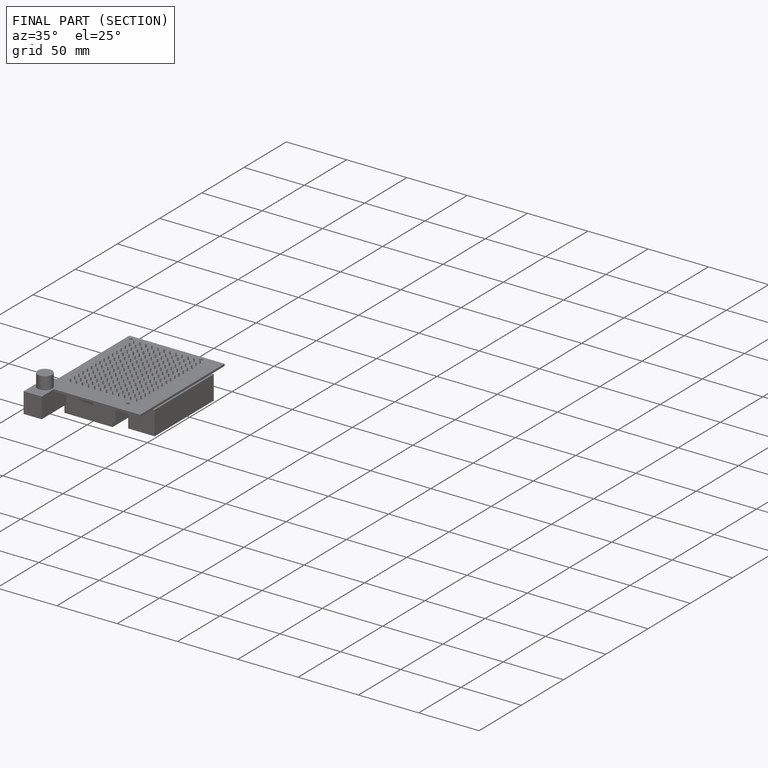
[diagram: finished part — half-section view (interior)]
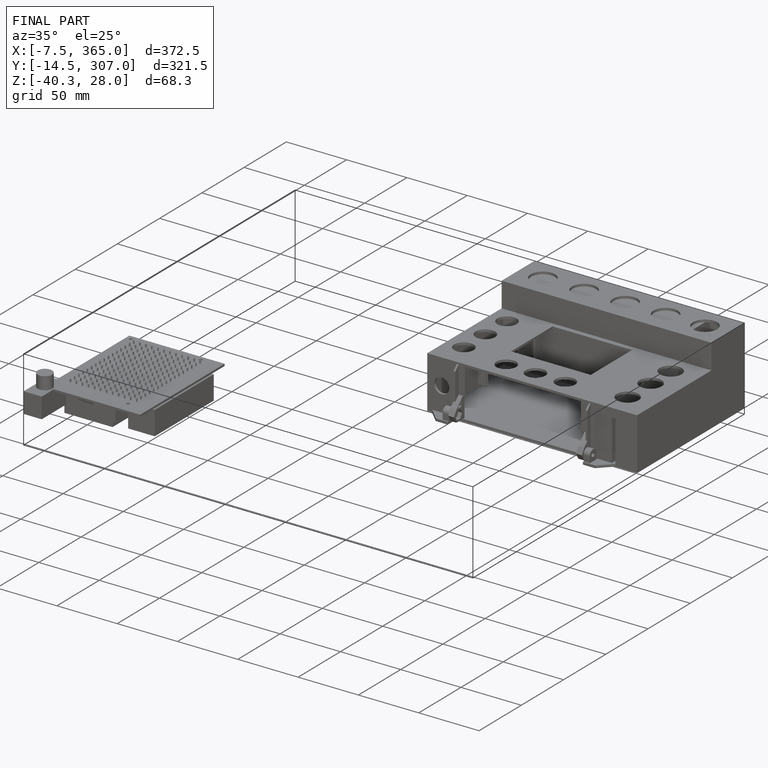
[diagram: finished part — iso view with bounding-box wireframe]
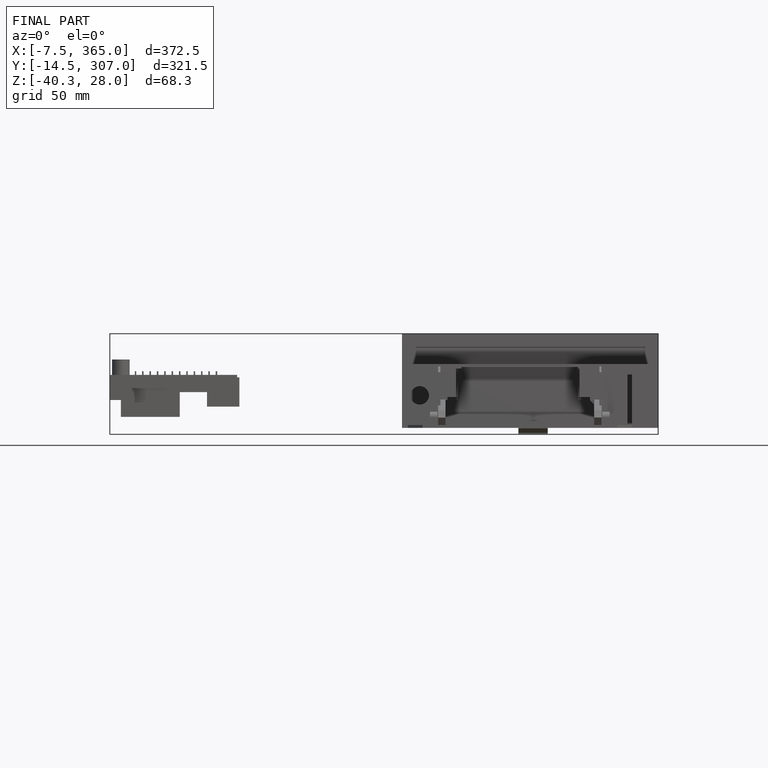
[diagram: finished part — front view with bounding-box wireframe]
